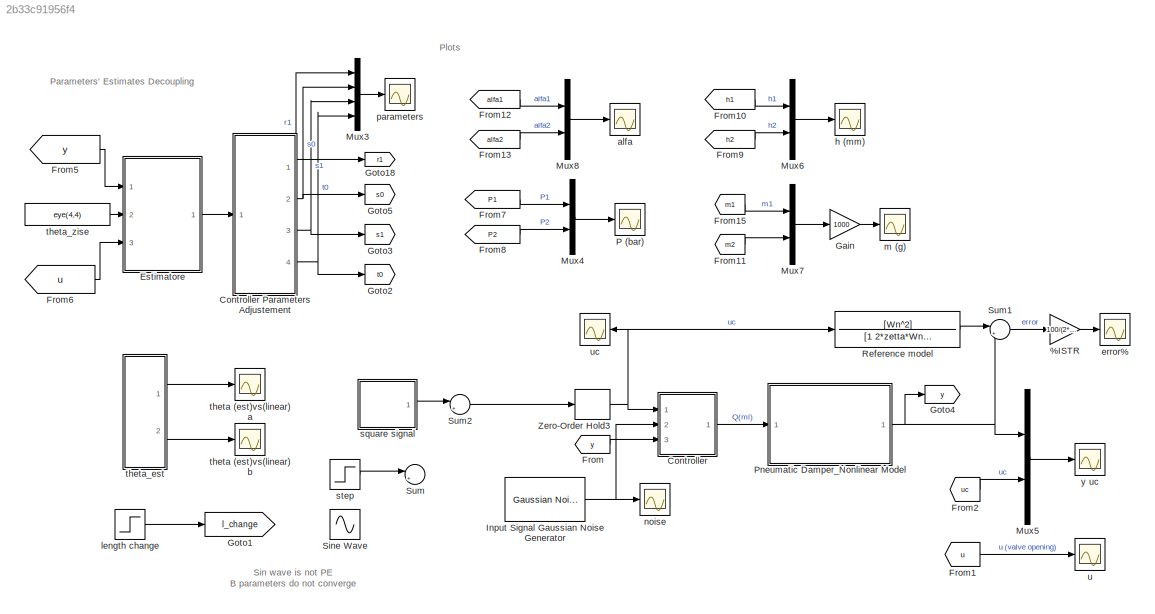
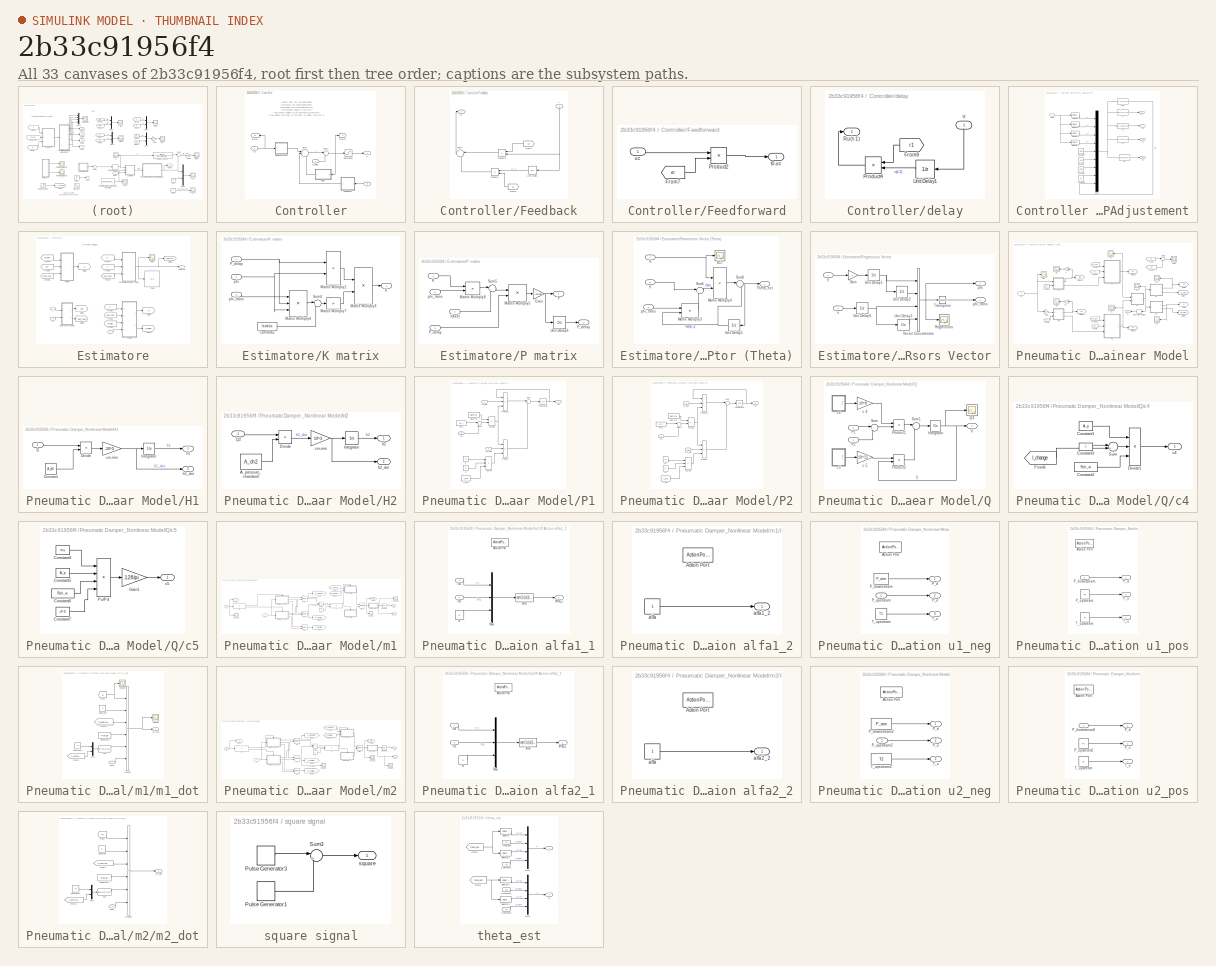
[diagram: thumbnail index - all 33 canvases of the model, root first then tree order]
MODEL slx_2b33c91956f4
KIND model
CONFIG AbsTol = auto
CONFIG EnableMultiTasking = on
CONFIG FixedStep = auto
CONFIG MaxStep = auto
CONFIG MinStep = auto
CONFIG RelTol = 1e-3
CONFIG SampleTimeConstraint = Unconstrained
CONFIG Solver = ode45
CONFIG SolverName = ode45
CONFIG StartTime = 0.0
CONFIG StopTime = 15*Tuc
BLOCK [Gain] %ISTR
  Gain = 100/(2*Q_amp)
  OutDataTypeStr = Inherit: Inherit via internal rule
  ParamDataTypeStr = Inherit: Inherit via internal rule
  SaturateOnIntegerOverflow = off
BLOCK [SubSystem] Controller
  Ports = [3, 1]
  RequestExecContextInheritance = off
BLOCK [SubSystem] Controller Parameters Adjustement
  Ports = [1, 4]
  RequestExecContextInheritance = off
BLOCK [Constant] Controller Parameters Adjustement/Constant
  Value = am1
BLOCK [Constant] Controller Parameters Adjustement/Constant2
  Value = am2
BLOCK [Constant] Controller Parameters Adjustement/Constant3
  Value = a0
BLOCK [Constant] Controller Parameters Adjustement/Constant4
  Value = bm0
BLOCK [Mux] Controller Parameters Adjustement/Mux2
  DisplayOption = bar
  Inputs = 9
  Ports = [9, 1]
BLOCK [Selector] Controller Parameters Adjustement/Selector
  IndexOptions = Index vector (dialog),Index vector (dialog)
  Indices = 1,1
  InputPortWidth = 3
  NumberOfDimensions = 2
  OutputSizes = 1,1
  Ports = [1, 1]
BLOCK [Selector] Controller Parameters Adjustement/Selector1
  IndexOptions = Index vector (dialog),Index vector (dialog)
  Indices = 4,1
  InputPortWidth = 3
  NumberOfDimensions = 2
  OutputSizes = 1,1
  Ports = [1, 1]
BLOCK [Selector] Controller Parameters Adjustement/Selector2
  IndexOptions = Index vector (dialog),Index vector (dialog)
  Indices = 2,1
  InputPortWidth = 3
  NumberOfDimensions = 2
  OutputSizes = 1,1
  Ports = [1, 1]
BLOCK [Selector] Controller Parameters Adjustement/Selector3
  IndexOptions = Index vector (dialog),Index vector (dialog)
  Indices = 3,1
  InputPortWidth = 3
  NumberOfDimensions = 2
  OutputSizes = 1,1
  Ports = [1, 1]
BLOCK [Fcn] Controller Parameters Adjustement/den
  Expr = u(4)^2-u(1)*u(3)*u(4)+u(2)*u(3)^2
BLOCK [Fcn] Controller Parameters Adjustement/r1
  Expr = (u(8)*u(7)*u(3)^2+(u(2)-u(7)-u(8)*u(6))*u(3)*u(4)+(u(8)+u(6)-u(1))*u(4)^2)/u(9)
BLOCK [Outport] Controller Parameters Adjustement/r1 
  IconDisplay = Port number
BLOCK [Fcn] Controller Parameters Adjustement/s0
  Expr = u(4)*(u(8)*u(6)-u(2)-u(6)*u(1)+u(1)^2+u(7)-u(1)*u(8))/u(9)+u(3)*(u(6)*u(2)-u(1)*u(2)-u(8)*u(7)+u(8)*u(2))/u(9)
BLOCK [Outport] Controller Parameters Adjustement/s0 
  IconDisplay = Port number
  Port = 2
BLOCK [Fcn] Controller Parameters Adjustement/s1
  Expr = u(4)*(u(1)*u(2)-u(6)*u(2)+u(8)*u(7)-u(8)*u(2))/u(9)+u(3)*(u(2)*u(7)-u(2)^2-u(8)*u(7)*u(1)+u(8)*u(2)*u(6))/u(9)
BLOCK [Outport] Controller Parameters Adjustement/s1 
  IconDisplay = Port number
  Port = 3
BLOCK [Fcn] Controller Parameters Adjustement/t0
  Expr = (1+u(6)+u(7))/(u(3)+u(4))
BLOCK [Outport] Controller Parameters Adjustement/t0 
  IconDisplay = Port number
  Port = 4
BLOCK [Inport] Controller Parameters Adjustement/theta
  IconDisplay = Port number
BLOCK [SubSystem] Controller/Feedback
  Ports = [1, 1]
  RequestExecContextInheritance = off
BLOCK [From] Controller/Feedback/From1
  GotoTag = s0
  TagVisibility = global
BLOCK [From] Controller/Feedback/From3
  GotoTag = s1
  TagVisibility = global
BLOCK [Product] Controller/Feedback/Product1
  InputSameDT = off
  OutDataTypeStr = Inherit: Inherit via internal rule
  Ports = [2, 1]
  RndMeth = Floor
  SaturateOnIntegerOverflow = off
BLOCK [Product] Controller/Feedback/Product3
  InputSameDT = off
  OutDataTypeStr = Inherit: Inherit via internal rule
  Ports = [2, 1]
  RndMeth = Floor
  SaturateOnIntegerOverflow = off
BLOCK [Outport] Controller/Feedback/S.y
  IconDisplay = Port number
BLOCK [Sum] Controller/Feedback/Sum4
  IconShape = round
  InputSameDT = off
  Inputs = |++
  OutDataTypeStr = Inherit: Inherit via internal rule
  Ports = [2, 1]
  SaturateOnIntegerOverflow = off
BLOCK [UnitDelay] Controller/Feedback/Unit Delay
  InputProcessing = Elements as channels (sample based)
  SampleTime = -1
BLOCK [Inport] Controller/Feedback/y
  IconDisplay = Port number
BLOCK [SubSystem] Controller/Feedforward
  Ports = [1, 1]
  RequestExecContextInheritance = off
BLOCK [From] Controller/Feedforward/From7
  GotoTag = t0
  TagVisibility = global
BLOCK [Product] Controller/Feedforward/Product2
  InputSameDT = off
  OutDataTypeStr = Inherit: Inherit via internal rule
  Ports = [2, 1]
  RndMeth = Floor
  SaturateOnIntegerOverflow = off
BLOCK [Outport] Controller/Feedforward/t0.uc
  IconDisplay = Port number
BLOCK [Inport] Controller/Feedforward/uc
  IconDisplay = Port number
BLOCK [Goto] Controller/Goto1
  GotoTag = uc
  TagVisibility = global
BLOCK [Goto] Controller/Goto4
  GotoTag = u
  TagVisibility = global
BLOCK [Saturate] Controller/Saturation
  InputPortMap = u0
  LowerLimit = -1
  Ports = [1, 1]
  UpperLimit = 1
BLOCK [Sum] Controller/Sum1
  IconShape = round
  InputSameDT = off
  Inputs = |++
  OutDataTypeStr = Inherit: Inherit via internal rule
  Ports = [2, 1]
  SaturateOnIntegerOverflow = off
BLOCK [Sum] Controller/Sum3
  IconShape = round
  InputSameDT = off
  Inputs = |+--
  OutDataTypeStr = Inherit: Inherit via internal rule
  Ports = [3, 1]
  SaturateOnIntegerOverflow = off
BLOCK [Outport] Controller/U
  IconDisplay = Port number
BLOCK [SubSystem] Controller/delay
  Ports = [1, 1]
  RequestExecContextInheritance = off
BLOCK [From] Controller/delay/From9
  GotoTag = r1
  TagVisibility = global
BLOCK [Product] Controller/delay/Product4
  InputSameDT = off
  OutDataTypeStr = Inherit: Inherit via internal rule
  Ports = [2, 1]
  RndMeth = Floor
  SaturateOnIntegerOverflow = off
BLOCK [Outport] Controller/delay/R.u(t-1)
  IconDisplay = Port number
BLOCK [UnitDelay] Controller/delay/Unit Delay1
  InputProcessing = Elements as channels (sample based)
  SampleTime = -1
BLOCK [Inport] Controller/delay/u
  IconDisplay = Port number
BLOCK [Inport] Controller/u_noise
  IconDisplay = Port number
  Port = 2
BLOCK [Inport] Controller/uc
  IconDisplay = Port number
BLOCK [Inport] Controller/y
  IconDisplay = Port number
  Port = 3
BLOCK [SubSystem] Estimatore
  Ports = [3, 1]
  RequestExecContextInheritance = off
BLOCK [From] Estimatore/From1
  GotoTag = y
  TagVisibility = global
BLOCK [From] Estimatore/From10
  GotoTag = P_delay
  TagVisibility = global
BLOCK [From] Estimatore/From14
  GotoTag = K
  TagVisibility = global
BLOCK [From] Estimatore/From15
  GotoTag = phi_trans
  TagVisibility = global
BLOCK [From] Estimatore/From17
  GotoTag = K
  TagVisibility = global
BLOCK [From] Estimatore/From2
  GotoTag = phi_trans
  TagVisibility = global
BLOCK [From] Estimatore/From7
  GotoTag = phi_trans
  TagVisibility = global
BLOCK [From] Estimatore/From8
  GotoTag = P_delay
  TagVisibility = global
BLOCK [From] Estimatore/From9
  GotoTag = phi
  TagVisibility = global
BLOCK [Goto] Estimatore/Goto1
  GotoTag = theta_est
  TagVisibility = global
BLOCK [Goto] Estimatore/Goto18
  GotoTag = P_delay
  TagVisibility = global
BLOCK [Goto] Estimatore/Goto3
  GotoTag = phi
  TagVisibility = global
BLOCK [Goto] Estimatore/Goto5
  GotoTag = phi_trans
  TagVisibility = global
BLOCK [Goto] Estimatore/Goto7
  GotoTag = P
  TagVisibility = global
BLOCK [Goto] Estimatore/Goto9
  GotoTag = K
  TagVisibility = global
BLOCK [Inport] Estimatore/I
  IconDisplay = Port number
  Port = 2
BLOCK [SubSystem] Estimatore/K matrix
  Ports = [3, 1]
  RequestExecContextInheritance = off
BLOCK [Outport] Estimatore/K matrix/K
  IconDisplay = Port number
BLOCK [Constant] Estimatore/K matrix/Lambda2
  Value = lambda
  VectorParams1D = off
BLOCK [Product] Estimatore/K matrix/Matrix Multiply2
  InputSameDT = off
  Multiplication = Matrix(*)
  OutDataTypeStr = Inherit: Inherit via internal rule
  Ports = [2, 1]
  RndMeth = Floor
  SaturateOnIntegerOverflow = off
BLOCK [Product] Estimatore/K matrix/Matrix Multiply6
  InputSameDT = off
  Inputs = ***
  Multiplication = Matrix(*)
  OutDataTypeStr = Inherit: Inherit via internal rule
  Ports = [3, 1]
  RndMeth = Floor
  SaturateOnIntegerOverflow = off
BLOCK [Product] Estimatore/K matrix/Matrix Multiply7
  InputSameDT = off
  Inputs = /
  Multiplication = Matrix(*)
  OutDataTypeStr = Inherit: Inherit via internal rule
  Ports = [1, 1]
  RndMeth = Floor
  SaturateOnIntegerOverflow = off
BLOCK [Product] Estimatore/K matrix/Matrix Multiply9
  InputSameDT = off
  Inputs = **
  Multiplication = Matrix(*)
  OutDataTypeStr = Inherit: Inherit via internal rule
  Ports = [2, 1]
  RndMeth = Floor
  SaturateOnIntegerOverflow = off
BLOCK [Inport] Estimatore/K matrix/P_delay
  IconDisplay = Port number
BLOCK [Sum] Estimatore/K matrix/Sum4
  IconShape = round
  InputSameDT = off
  Inputs = |++
  OutDataTypeStr = Inherit: Inherit via internal rule
  Ports = [2, 1]
  SaturateOnIntegerOverflow = off
BLOCK [Inport] Estimatore/K matrix/phi
  IconDisplay = Port number
  Port = 2
BLOCK [Inport] Estimatore/K matrix/phi_trans
  IconDisplay = Port number
  Port = 3
BLOCK [SubSystem] Estimatore/P matrix
  Ports = [4, 2]
  RequestExecContextInheritance = off
BLOCK [Gain] Estimatore/P matrix/Gain
  Gain = 1/lambda
  OutDataTypeStr = Inherit: Inherit via internal rule
  ParamDataTypeStr = Inherit: Inherit via internal rule
  SaturateOnIntegerOverflow = off
BLOCK [Inport] Estimatore/P matrix/I(4x4)
  IconDisplay = Port number
  Port = 4
BLOCK [Inport] Estimatore/P matrix/K
  IconDisplay = Port number
BLOCK [Product] Estimatore/P matrix/Matrix Multiply5
  InputSameDT = off
  Multiplication = Matrix(*)
  OutDataTypeStr = Inherit: Inherit via internal rule
  Ports = [2, 1]
  RndMeth = Floor
  SaturateOnIntegerOverflow = off
BLOCK [Product] Estimatore/P matrix/Matrix Multiply8
  InputSameDT = off
  Multiplication = Matrix(*)
  OutDataTypeStr = Inherit: Inherit via internal rule
  Ports = [2, 1]
  RndMeth = Floor
  SaturateOnIntegerOverflow = off
BLOCK [Outport] Estimatore/P matrix/P
  IconDisplay = Port number
BLOCK [Inport] Estimatore/P matrix/P_delay
  IconDisplay = Port number
  Port = 3
BLOCK [Outport] Estimatore/P matrix/P_delay 
  IconDisplay = Port number
  Port = 2
BLOCK [Sum] Estimatore/P matrix/Sum5
  IconShape = round
  InputSameDT = off
  Inputs = |-+
  OutDataTypeStr = Inherit: Inherit via internal rule
  Ports = [2, 1]
  SaturateOnIntegerOverflow = off
BLOCK [UnitDelay] Estimatore/P matrix/Unit Delay6
  InitialCondition = P_init
  InputProcessing = Elements as channels (sample based)
  SampleTime = Tsamp
BLOCK [Inport] Estimatore/P matrix/phi_trans
  IconDisplay = Port number
  Port = 2
BLOCK [SubSystem] Estimatore/Parameters Vector (Theta)
  Ports = [3, 1]
  RequestExecContextInheritance = off
BLOCK [Inport] Estimatore/Parameters Vector (Theta)/K
  IconDisplay = Port number
BLOCK [Scope] Estimatore/Parameters Vector (Theta)/K17
  Floating = off
  NumInputPorts = 1
  Ports = [1]
  ScopeSpecificationString = C++SS(StrPVP('Location','[6, 48, 1030, 727]'),StrPVP('Open','off'),MxPVP('AxesTitles',53,'struct(''axes1'',''%<SignalLabel>'')'),MxPVP('ScopeGraphics',56,'struct(''FigureColor'',''[0.5 0.5 0.5]'',''AxesColor'',''[0 0 0]'',''AxesTickColor'',''[1 1 1]'',''LineColors'',''[1 1 0;1 0 1;0 1 1;1 0 0;0 1 0;0 0 1]'',''LineStyles'',''-|-|-|-|-|-'',''LineWidths'',''[0.5 0.5 0.5 0.5 0.5 0.5]'',''MarkerStyles'...<+370ch>
BLOCK [Product] Estimatore/Parameters Vector (Theta)/Matrix Multiply3
  InputSameDT = off
  Multiplication = Matrix(*)
  OutDataTypeStr = Inherit: Inherit via internal rule
  Ports = [2, 1]
  RndMeth = Floor
  SaturateOnIntegerOverflow = off
BLOCK [Product] Estimatore/Parameters Vector (Theta)/Matrix Multiply4
  InputSameDT = off
  Multiplication = Matrix(*)
  OutDataTypeStr = Inherit: Inherit via internal rule
  Ports = [2, 1]
  RndMeth = Floor
  SaturateOnIntegerOverflow = off
BLOCK [Sum] Estimatore/Parameters Vector (Theta)/Sum1
  IconShape = round
  InputSameDT = off
  Inputs = |+-
  OutDataTypeStr = Inherit: Inherit via internal rule
  Ports = [2, 1]
  SaturateOnIntegerOverflow = off
BLOCK [Sum] Estimatore/Parameters Vector (Theta)/Sum3
  IconShape = round
  InputSameDT = off
  Inputs = |++
  OutDataTypeStr = Inherit: Inherit via internal rule
  Ports = [2, 1]
  SaturateOnIntegerOverflow = off
BLOCK [Outport] Estimatore/Parameters Vector (Theta)/Theta_est
  IconDisplay = Port number
BLOCK [UnitDelay] Estimatore/Parameters Vector (Theta)/Unit Delay1
  InitialCondition = theta_init
  InputProcessing = Elements as channels (sample based)
  SampleTime = Tsamp
BLOCK [Inport] Estimatore/Parameters Vector (Theta)/phi_trans
  IconDisplay = Port number
  Port = 3
BLOCK [Inport] Estimatore/Parameters Vector (Theta)/y
  IconDisplay = Port number
  Port = 2
BLOCK [SubSystem] Estimatore/Regressors Vector
  Ports = [2, 2]
  RequestExecContextInheritance = off
BLOCK [Gain] Estimatore/Regressors Vector/Gain
  Gain = -1
  OutDataTypeStr = Inherit: Inherit via internal rule
  ParamDataTypeStr = Inherit: Inherit via internal rule
  SaturateOnIntegerOverflow = off
BLOCK [Scope] Estimatore/Regressors Vector/Regressors
  Floating = off
  NumInputPorts = 1
  Ports = [1]
  ScopeSpecificationString = C++SS(StrPVP('Location','[6, 47, 958, 894]'),StrPVP('Open','off'),MxPVP('AxesTitles',53,'struct(''axes1'',''%<SignalLabel>'')'),MxPVP('ScopeGraphics',56,'struct(''FigureColor'',''[0.5 0.5 0.5]'',''AxesColor'',''[0 0 0]'',''AxesTickColor'',''[1 1 1]'',''LineColors'',''[1 1 0;1 0 1;0 1 1;1 0 0;0 1 0;0 0 1]'',''LineStyles'',''-|-|-|-|-|-'',''LineWidths'',''[0.5 0.5 0.5 0.5 0.5 0.5]'',''MarkerStyles''...<+375ch>
BLOCK [Math] Estimatore/Regressors Vector/Transpose
  Operator = transpose
  Ports = [1, 1]
BLOCK [UnitDelay] Estimatore/Regressors Vector/Unit Delay1
  InputProcessing = Elements as channels (sample based)
  SampleTime = Tsamp
BLOCK [UnitDelay] Estimatore/Regressors Vector/Unit Delay2
  InputProcessing = Elements as channels (sample based)
  SampleTime = Tsamp
BLOCK [UnitDelay] Estimatore/Regressors Vector/Unit Delay3
  InitialCondition = 0.1
  InputProcessing = Elements as channels (sample based)
  SampleTime = Tsamp
BLOCK [UnitDelay] Estimatore/Regressors Vector/Unit Delay6
  InputProcessing = Elements as channels (sample based)
  SampleTime = Tsamp
BLOCK [Concatenate] Estimatore/Regressors Vector/Vector Concatenate
  Mode = Multidimensional array
  NumInputs = 4
  Ports = [4, 1]
BLOCK [Outport] Estimatore/Regressors Vector/phi
  IconDisplay = Port number
BLOCK [Outport] Estimatore/Regressors Vector/phi_trans
  IconDisplay = Port number
  Port = 2
BLOCK [Inport] Estimatore/Regressors Vector/u
  IconDisplay = Port number
  Port = 2
BLOCK [Inport] Estimatore/Regressors Vector/y
  IconDisplay = Port number
BLOCK [Display] Estimatore/Theta
  Decimation = 1
  Ports = [1]
BLOCK [Outport] Estimatore/Theta_est
  IconDisplay = Port number
BLOCK [Scope] Estimatore/theta
  Floating = off
  NumInputPorts = 1
  Ports = [1]
  ScopeSpecificationString = C++SS(StrPVP('Location','[6, 48, 1030, 727]'),StrPVP('Open','off'),MxPVP('AxesTitles',53,'struct(''axes1'',''%<SignalLabel>'')'),MxPVP('ScopeGraphics',56,'struct(''FigureColor'',''[0.5 0.5 0.5]'',''AxesColor'',''[0 0 0]'',''AxesTickColor'',''[1 1 1]'',''LineColors'',''[1 1 0;1 0 1;0 1 1;1 0 0;0 1 0;0 0 1]'',''LineStyles'',''-|-|-|-|-|-'',''LineWidths'',''[0.5 0.5 0.5 0.5 0.5 0.5]'',''MarkerStyles'...<+372ch>
BLOCK [Inport] Estimatore/u
  IconDisplay = Port number
  Port = 3
BLOCK [Inport] Estimatore/y
  IconDisplay = Port number
BLOCK [From] From
  GotoTag = y
  TagVisibility = global
BLOCK [From] From1
  GotoTag = u
  TagVisibility = global
BLOCK [From] From10
  GotoTag = h1
  TagVisibility = global
BLOCK [From] From11
  GotoTag = m2
  TagVisibility = global
BLOCK [From] From12
  GotoTag = alfa1
  TagVisibility = global
BLOCK [From] From13
  GotoTag = alfa2
  TagVisibility = global
BLOCK [From] From15
  GotoTag = m1
  TagVisibility = global
BLOCK [From] From2
  GotoTag = uc
  TagVisibility = global
BLOCK [From] From5
  GotoTag = y
  TagVisibility = global
BLOCK [From] From6
  GotoTag = u
  TagVisibility = global
BLOCK [From] From7
  GotoTag = P1
  TagVisibility = global
BLOCK [From] From8
  GotoTag = P2
  TagVisibility = global
BLOCK [From] From9
  GotoTag = h2
  TagVisibility = global
BLOCK [Gain] Gain
  Gain = 1000
  OutDataTypeStr = Inherit: Inherit via internal rule
  ParamDataTypeStr = Inherit: Inherit via internal rule
  SaturateOnIntegerOverflow = off
BLOCK [Goto] Goto1
  GotoTag = l_change
  TagVisibility = global
BLOCK [Goto] Goto18
  GotoTag = r1
  TagVisibility = global
BLOCK [Goto] Goto2
  GotoTag = t0
  TagVisibility = global
BLOCK [Goto] Goto3
  GotoTag = s1
  TagVisibility = global
BLOCK [Goto] Goto4
  GotoTag = y
  TagVisibility = global
BLOCK [Goto] Goto5
  GotoTag = s0
  TagVisibility = global
BLOCK [Reference] Input Signal Gaussian Noise Generator  REF=commnoisgen2/Gaussian Noise
Generator
  Ports = [0, 1]
  SourceBlock = commnoisgen2/Gaussian Noise\nGenerator
  SourceType = Gaussian Noise Generator
BLOCK [Mux] Mux3
  DisplayOption = bar
  Ports = [4, 1]
BLOCK [Mux] Mux4
  DisplayOption = bar
  Inputs = 2
  Ports = [2, 1]
BLOCK [Mux] Mux5
  DisplayOption = bar
  Inputs = 2
  Ports = [2, 1]
BLOCK [Mux] Mux6
  DisplayOption = bar
  Inputs = 2
  Ports = [2, 1]
BLOCK [Mux] Mux7
  DisplayOption = bar
  Inputs = 2
  Ports = [2, 1]
BLOCK [Mux] Mux8
  DisplayOption = bar
  Inputs = 2
  Ports = [2, 1]
BLOCK [Scope] P (bar)
  Floating = off
  NumInputPorts = 1
  Ports = [1]
  ScopeSpecificationString = C++SS(StrPVP('Location','[6, 211, 432, 537]'),StrPVP('Open','off'),StrPVP('ZoomMode','xonly'),MxPVP('AxesTitles',53,'struct(''axes1'',''%<SignalLabel>'')'),MxPVP('ScopeGraphics',56,'struct(''FigureColor'',''[0.5 0.5 0.5]'',''AxesColor'',''[0 0 0]'',''AxesTickColor'',''[1 1 1]'',''LineColors'',''[1 1 0;1 0 1;0 1 1;1 0 0;0 1 0;0 0 1]'',''LineStyles'',''-|-|-|-|-|-'',''LineWidths'',''[0.5 0.5 0.5 0.5...<+341ch>
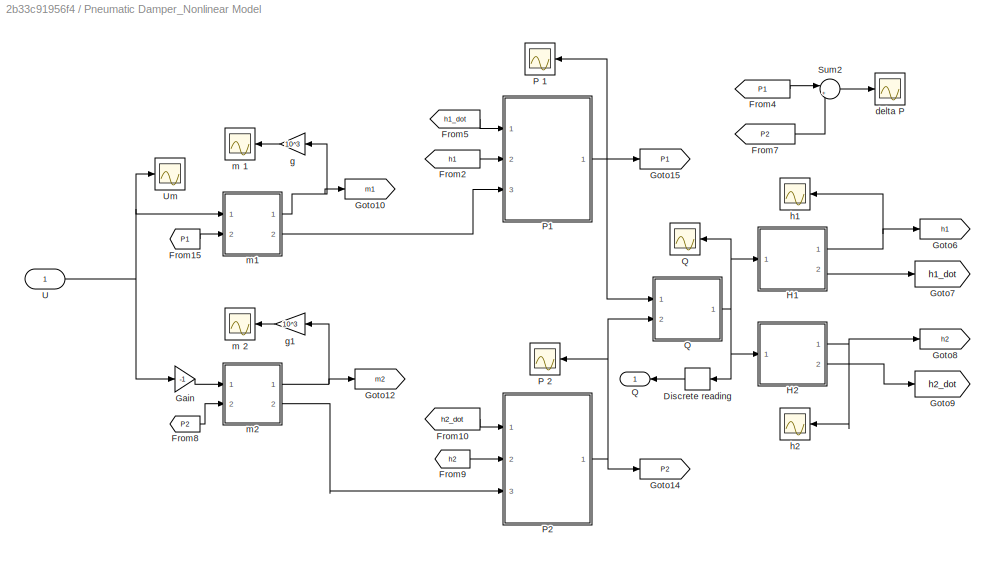
BLOCK [SubSystem] Pneumatic Damper_Nonlinear Model
  Ports = [1, 1]
  RequestExecContextInheritance = off
BLOCK [ZeroOrderHold] Pneumatic Damper_Nonlinear Model/Discrete reading
  SampleTime = Tsamp
BLOCK [From] Pneumatic Damper_Nonlinear Model/From10
  GotoTag = h2_dot
  TagVisibility = global
BLOCK [From] Pneumatic Damper_Nonlinear Model/From15
  GotoTag = P1
  TagVisibility = global
BLOCK [From] Pneumatic Damper_Nonlinear Model/From2
  GotoTag = h1
  TagVisibility = global
BLOCK [From] Pneumatic Damper_Nonlinear Model/From4
  GotoTag = P1
  TagVisibility = global
BLOCK [From] Pneumatic Damper_Nonlinear Model/From5
  GotoTag = h1_dot
  TagVisibility = global
BLOCK [From] Pneumatic Damper_Nonlinear Model/From7
  GotoTag = P2
  TagVisibility = global
BLOCK [From] Pneumatic Damper_Nonlinear Model/From8
  GotoTag = P2
  TagVisibility = global
BLOCK [From] Pneumatic Damper_Nonlinear Model/From9
  GotoTag = h2
  TagVisibility = global
BLOCK [Gain] Pneumatic Damper_Nonlinear Model/Gain
  Gain = -1
  OutDataTypeStr = Inherit: Inherit via internal rule
  ParamDataTypeStr = Inherit: Inherit via internal rule
  SaturateOnIntegerOverflow = off
BLOCK [Goto] Pneumatic Damper_Nonlinear Model/Goto10
  GotoTag = m1
  TagVisibility = global
BLOCK [Goto] Pneumatic Damper_Nonlinear Model/Goto12
  GotoTag = m2
  TagVisibility = global
BLOCK [Goto] Pneumatic Damper_Nonlinear Model/Goto14
  GotoTag = P2
  TagVisibility = global
BLOCK [Goto] Pneumatic Damper_Nonlinear Model/Goto15
  GotoTag = P1
  TagVisibility = global
BLOCK [Goto] Pneumatic Damper_Nonlinear Model/Goto6
  GotoTag = h1
  TagVisibility = global
BLOCK [Goto] Pneumatic Damper_Nonlinear Model/Goto7
  GotoTag = h1_dot
  TagVisibility = global
BLOCK [Goto] Pneumatic Damper_Nonlinear Model/Goto8
  GotoTag = h2
  TagVisibility = global
BLOCK [Goto] Pneumatic Damper_Nonlinear Model/Goto9
  GotoTag = h2_dot
  TagVisibility = global
BLOCK [SubSystem] Pneumatic Damper_Nonlinear Model/H1
  Ports = [1, 2]
  RequestExecContextInheritance = off
BLOCK [Constant] Pneumatic Damper_Nonlinear Model/H1/Constant
  Value = A_ch1
BLOCK [Product] Pneumatic Damper_Nonlinear Model/H1/Divide
  InputSameDT = off
  Inputs = */
  OutDataTypeStr = Inherit: Inherit via internal rule
  Ports = [2, 1]
  RndMeth = Floor
  SaturateOnIntegerOverflow = off
BLOCK [Integrator] Pneumatic Damper_Nonlinear Model/H1/Integrator
  InitialCondition = h1_init
  Ports = [1, 1]
BLOCK [Inport] Pneumatic Damper_Nonlinear Model/H1/Q
  IconDisplay = Port number
BLOCK [Gain] Pneumatic Damper_Nonlinear Model/H1/cm-mm
  Gain = -10^3
  OutDataTypeStr = Inherit: Inherit via internal rule
  ParamDataTypeStr = Inherit: Inherit via internal rule
  SaturateOnIntegerOverflow = off
BLOCK [Outport] Pneumatic Damper_Nonlinear Model/H1/h1
  IconDisplay = Port number
BLOCK [Outport] Pneumatic Damper_Nonlinear Model/H1/h1_dot
  IconDisplay = Port number
  Port = 2
BLOCK [SubSystem] Pneumatic Damper_Nonlinear Model/H2
  Ports = [1, 2]
  RequestExecContextInheritance = off
BLOCK [Constant] Pneumatic Damper_Nonlinear Model/H2/A_pressure_chamber2
  Value = A_ch2
BLOCK [Product] Pneumatic Damper_Nonlinear Model/H2/Divide
  InputSameDT = off
  Inputs = */
  OutDataTypeStr = Inherit: Inherit via internal rule
  Ports = [2, 1]
  RndMeth = Floor
  SaturateOnIntegerOverflow = off
BLOCK [Integrator] Pneumatic Damper_Nonlinear Model/H2/Integrator
  InitialCondition = h2_init
  Ports = [1, 1]
BLOCK [Inport] Pneumatic Damper_Nonlinear Model/H2/Q2
  IconDisplay = Port number
BLOCK [Gain] Pneumatic Damper_Nonlinear Model/H2/cm-mm
  Gain = 10^3
  OutDataTypeStr = Inherit: Inherit via internal rule
  ParamDataTypeStr = Inherit: Inherit via internal rule
  SaturateOnIntegerOverflow = off
BLOCK [Outport] Pneumatic Damper_Nonlinear Model/H2/h2
  IconDisplay = Port number
BLOCK [Outport] Pneumatic Damper_Nonlinear Model/H2/h2_dot
  IconDisplay = Port number
  Port = 2
BLOCK [Scope] Pneumatic Damper_Nonlinear Model/P 1
  Floating = off
  NumInputPorts = 1
  Ports = [1]
  ScopeSpecificationString = C++SS(StrPVP('Location','[398, 357, 722, 595]'),StrPVP('Open','off'),MxPVP('AxesTitles',53,'struct(''axes1'',''%<SignalLabel>'')'),MxPVP('ScopeGraphics',56,'struct(''FigureColor'',''[0.5 0.5 0.5]'',''AxesColor'',''[0 0 0]'',''AxesTickColor'',''[1 1 1]'',''LineColors'',''[1 1 0;1 0 1;0 1 1;1 0 0;0 1 0;0 0 1]'',''LineStyles'',''-|-|-|-|-|-'',''LineWidths'',''[0.5 0.5 0.5 0.5 0.5 0.5]'',''MarkerStyle...<+357ch>
BLOCK [Scope] Pneumatic Damper_Nonlinear Model/P 2
  Floating = off
  NumInputPorts = 1
  Ports = [1]
  ScopeSpecificationString = C++SS(StrPVP('Location','[926, 385, 1250, 624]'),StrPVP('Open','off'),MxPVP('AxesTitles',53,'struct(''axes1'',''%<SignalLabel>'')'),MxPVP('ScopeGraphics',56,'struct(''FigureColor'',''[0.5 0.5 0.5]'',''AxesColor'',''[0 0 0]'',''AxesTickColor'',''[1 1 1]'',''LineColors'',''[1 1 0;1 0 1;0 1 1;1 0 0;0 1 0;0 0 1]'',''LineStyles'',''-|-|-|-|-|-'',''LineWidths'',''[0.5 0.5 0.5 0.5 0.5 0.5]'',''MarkerStyl...<+272ch>
BLOCK [SubSystem] Pneumatic Damper_Nonlinear Model/P1
  Ports = [3, 1]
  RequestExecContextInheritance = off
BLOCK [Constant] Pneumatic Damper_Nonlinear Model/P1/A_ch1
  Value = A_ch1
BLOCK [Constant] Pneumatic Damper_Nonlinear Model/P1/Gamma
  Value = Gamma
BLOCK [Integrator] Pneumatic Damper_Nonlinear Model/P1/Integrator
  InitialCondition = P2_init
  Ports = [1, 1]
BLOCK [Outport] Pneumatic Damper_Nonlinear Model/P1/P1
  IconDisplay = Port number
BLOCK [Product] Pneumatic Damper_Nonlinear Model/P1/Product
  InputSameDT = off
  Inputs = 3
  OutDataTypeStr = Inherit: Inherit via internal rule
  Ports = [3, 1]
  RndMeth = Floor
  SaturateOnIntegerOverflow = off
BLOCK [Product] Pneumatic Damper_Nonlinear Model/P1/Product1
  InputSameDT = off
  Inputs = 3
  OutDataTypeStr = Inherit: Inherit via internal rule
  Ports = [3, 1]
  RndMeth = Floor
  SaturateOnIntegerOverflow = off
BLOCK [Product] Pneumatic Damper_Nonlinear Model/P1/Pu//Pd
  InputSameDT = off
  Inputs = **/
  OutDataTypeStr = Inherit: Inherit via internal rule
  Ports = [3, 1]
  RndMeth = Floor
  SaturateOnIntegerOverflow = off
BLOCK [Product] Pneumatic Damper_Nonlinear Model/P1/Pu//Pd1
  InputSameDT = off
  Inputs = */
  OutDataTypeStr = Inherit: Inherit via internal rule
  Ports = [2, 1]
  RndMeth = Floor
  SaturateOnIntegerOverflow = off
BLOCK [Constant] Pneumatic Damper_Nonlinear Model/P1/R
  Value = R
BLOCK [Sum] Pneumatic Damper_Nonlinear Model/P1/Sum
  IconShape = round
  InputSameDT = off
  Inputs = |++
  OutDataTypeStr = Inherit: Inherit via internal rule
  Ports = [2, 1]
  SaturateOnIntegerOverflow = off
BLOCK [Sum] Pneumatic Damper_Nonlinear Model/P1/Sum1
  IconShape = round
  InputSameDT = off
  Inputs = |+-
  OutDataTypeStr = Inherit: Inherit via internal rule
  Ports = [2, 1]
  SaturateOnIntegerOverflow = off
BLOCK [Constant] Pneumatic Damper_Nonlinear Model/P1/Tf
  Value = Tf
BLOCK [Constant] Pneumatic Damper_Nonlinear Model/P1/h0_1
  Value = h0_1
BLOCK [Inport] Pneumatic Damper_Nonlinear Model/P1/h1
  IconDisplay = Port number
  Port = 2
BLOCK [Inport] Pneumatic Damper_Nonlinear Model/P1/h1_dot
  IconDisplay = Port number
BLOCK [Inport] Pneumatic Damper_Nonlinear Model/P1/m1_dot
  IconDisplay = Port number
  Port = 3
BLOCK [SubSystem] Pneumatic Damper_Nonlinear Model/P2
  Ports = [3, 1]
  RequestExecContextInheritance = off
BLOCK [Constant] Pneumatic Damper_Nonlinear Model/P2/A_ch1
  Value = A_ch2
BLOCK [Constant] Pneumatic Damper_Nonlinear Model/P2/Gamma
  Value = Gamma
BLOCK [Integrator] Pneumatic Damper_Nonlinear Model/P2/Integrator
  InitialCondition = P2_init
  Ports = [1, 1]
BLOCK [Outport] Pneumatic Damper_Nonlinear Model/P2/P2
  IconDisplay = Port number
BLOCK [Product] Pneumatic Damper_Nonlinear Model/P2/Product
  InputSameDT = off
  Inputs = 3
  OutDataTypeStr = Inherit: Inherit via internal rule
  Ports = [3, 1]
  RndMeth = Floor
  SaturateOnIntegerOverflow = off
BLOCK [Product] Pneumatic Damper_Nonlinear Model/P2/Product1
  InputSameDT = off
  Inputs = 3
  OutDataTypeStr = Inherit: Inherit via internal rule
  Ports = [3, 1]
  RndMeth = Floor
  SaturateOnIntegerOverflow = off
BLOCK [Product] Pneumatic Damper_Nonlinear Model/P2/Pu//Pd
  InputSameDT = off
  Inputs = **/
  OutDataTypeStr = Inherit: Inherit via internal rule
  Ports = [3, 1]
  RndMeth = Floor
  SaturateOnIntegerOverflow = off
BLOCK [Product] Pneumatic Damper_Nonlinear Model/P2/Pu//Pd1
  InputSameDT = off
  Inputs = */
  OutDataTypeStr = Inherit: Inherit via internal rule
  Ports = [2, 1]
  RndMeth = Floor
  SaturateOnIntegerOverflow = off
BLOCK [Constant] Pneumatic Damper_Nonlinear Model/P2/R
  Value = R
BLOCK [Sum] Pneumatic Damper_Nonlinear Model/P2/Sum
  IconShape = round
  InputSameDT = off
  Inputs = |++
  OutDataTypeStr = Inherit: Inherit via internal rule
  Ports = [2, 1]
  SaturateOnIntegerOverflow = off
BLOCK [Sum] Pneumatic Damper_Nonlinear Model/P2/Sum1
  IconShape = round
  InputSameDT = off
  Inputs = |+-
  OutDataTypeStr = Inherit: Inherit via internal rule
  Ports = [2, 1]
  SaturateOnIntegerOverflow = off
BLOCK [Constant] Pneumatic Damper_Nonlinear Model/P2/Tf
  Value = Tf
BLOCK [Constant] Pneumatic Damper_Nonlinear Model/P2/h0_1
  Value = h0_2
BLOCK [Inport] Pneumatic Damper_Nonlinear Model/P2/h2
  IconDisplay = Port number
  Port = 2
BLOCK [Inport] Pneumatic Damper_Nonlinear Model/P2/h2_dot
  IconDisplay = Port number
BLOCK [Inport] Pneumatic Damper_Nonlinear Model/P2/m2_dot
  IconDisplay = Port number
  Port = 3
BLOCK [SubSystem] Pneumatic Damper_Nonlinear Model/Q
  Ports = [2, 1]
  RequestExecContextInheritance = off
BLOCK [Scope] Pneumatic Damper_Nonlinear Model/Q 
  Floating = off
  NumInputPorts = 1
  Ports = [1]
  ScopeSpecificationString = C++SS(StrPVP('Location','[130, 497, 556, 729]'),StrPVP('Open','off'),MxPVP('AxesTitles',53,'struct(''axes1'',''%<SignalLabel>'')'),MxPVP('ScopeGraphics',56,'struct(''FigureColor'',''[0.5 0.5 0.5]'',''AxesColor'',''[0 0 0]'',''AxesTickColor'',''[1 1 1]'',''LineColors'',''[1 1 0;1 0 1;0 1 1;1 0 0;0 1 0;0 0 1]'',''LineStyles'',''-|-|-|-|-|-'',''LineWidths'',''[0.5 0.5 0.5 0.5 0.5 0.5]'',''MarkerStyle...<+271ch>
BLOCK [Outport] Pneumatic Damper_Nonlinear Model/Q  
  IconDisplay = Port number
BLOCK [Integrator] Pneumatic Damper_Nonlinear Model/Q/Integrator
  Ports = [1, 1]
BLOCK [Inport] Pneumatic Damper_Nonlinear Model/Q/P1
  IconDisplay = Port number
BLOCK [Inport] Pneumatic Damper_Nonlinear Model/Q/P2
  IconDisplay = Port number
  Port = 2
BLOCK [Product] Pneumatic Damper_Nonlinear Model/Q/Product1
  InputSameDT = off
  OutDataTypeStr = Inherit: Inherit via internal rule
  Ports = [2, 1]
  RndMeth = Floor
  SaturateOnIntegerOverflow = off
BLOCK [Product] Pneumatic Damper_Nonlinear Model/Q/Product2
  InputSameDT = off
  OutDataTypeStr = Inherit: Inherit via internal rule
  Ports = [2, 1]
  RndMeth = Floor
  SaturateOnIntegerOverflow = off
BLOCK [Outport] Pneumatic Damper_Nonlinear Model/Q/Q
  IconDisplay = Port number
BLOCK [Scope] Pneumatic Damper_Nonlinear Model/Q/Q 2
  Floating = off
  NumInputPorts = 1
  Ports = [1]
  ScopeSpecificationString = C++SS(StrPVP('Location','[188, 390, 512, 629]'),StrPVP('Open','off'),MxPVP('AxesTitles',53,'struct(''axes1'',''%<SignalLabel>'')'),MxPVP('ScopeGraphics',56,'struct(''FigureColor'',''[0.5 0.5 0.5]'',''AxesColor'',''[0 0 0]'',''AxesTickColor'',''[1 1 1]'',''LineColors'',''[1 1 0;1 0 1;0 1 1;1 0 0;0 1 0;0 0 1]'',''LineStyles'',''-|-|-|-|-|-'',''LineWidths'',''[0.5 0.5 0.5 0.5 0.5 0.5]'',''MarkerStyle...<+272ch>  <repeated x5 — deduplicated; at blocks: Q 2, Scope2, Scope3>
BLOCK [Sum] Pneumatic Damper_Nonlinear Model/Q/Sum
  IconShape = round
  InputSameDT = off
  Inputs = |+-
  OutDataTypeStr = Inherit: Inherit via internal rule
  Ports = [2, 1]
  SaturateOnIntegerOverflow = off
BLOCK [Sum] Pneumatic Damper_Nonlinear Model/Q/Sum1
  IconShape = round
  InputSameDT = off
  Inputs = |+-
  OutDataTypeStr = Inherit: Inherit via internal rule
  Ports = [2, 1]
  SaturateOnIntegerOverflow = off
BLOCK [Gain] Pneumatic Damper_Nonlinear Model/Q/c 4
  Gain = 10^8
  OutDataTypeStr = Inherit: Inherit via internal rule
  ParamDataTypeStr = Inherit: Inherit via internal rule
  SaturateOnIntegerOverflow = off
BLOCK [Gain] Pneumatic Damper_Nonlinear Model/Q/c 5
  Gain = 10^11
  OutDataTypeStr = Inherit: Inherit via internal rule
  ParamDataTypeStr = Inherit: Inherit via internal rule
  SaturateOnIntegerOverflow = off
BLOCK [SubSystem] Pneumatic Damper_Nonlinear Model/Q/c4
  Ports = [0, 1]
  RequestExecContextInheritance = off
BLOCK [Constant] Pneumatic Damper_Nonlinear Model/Q/c4/Constant1
  Value = A_p
BLOCK [Constant] Pneumatic Damper_Nonlinear Model/Q/c4/Constant2
  Value = Roh_w
BLOCK [Constant] Pneumatic Damper_Nonlinear Model/Q/c4/Constant3
  Value = l
BLOCK [Product] Pneumatic Damper_Nonlinear Model/Q/c4/Divide1
  InputSameDT = off
  Inputs = *//
  OutDataTypeStr = Inherit: Inherit via internal rule
  Ports = [3, 1]
  RndMeth = Floor
  SaturateOnIntegerOverflow = off
BLOCK [From] Pneumatic Damper_Nonlinear Model/Q/c4/From6
  GotoTag = l_change
  TagVisibility = global
BLOCK [Sum] Pneumatic Damper_Nonlinear Model/Q/c4/Sum
  IconShape = round
  InputSameDT = off
  Inputs = |++
  OutDataTypeStr = Inherit: Inherit via internal rule
  Ports = [2, 1]
  SaturateOnIntegerOverflow = off
BLOCK [Outport] Pneumatic Damper_Nonlinear Model/Q/c4/c4
  IconDisplay = Port number
BLOCK [SubSystem] Pneumatic Damper_Nonlinear Model/Q/c5
  Ports = [0, 1]
  RequestExecContextInheritance = off
BLOCK [Constant] Pneumatic Damper_Nonlinear Model/Q/c5/Constant4
  Value = mu
BLOCK [Constant] Pneumatic Damper_Nonlinear Model/Q/c5/Constant5
  Value = A_p
BLOCK [Constant] Pneumatic Damper_Nonlinear Model/Q/c5/Constant6
  Value = Roh_w
BLOCK [Constant] Pneumatic Damper_Nonlinear Model/Q/c5/Constant7
  Value = d^4
BLOCK [Gain] Pneumatic Damper_Nonlinear Model/Q/c5/Gain1
  Gain = 128/pi
  OutDataTypeStr = Inherit: Inherit via internal rule
  ParamDataTypeStr = Inherit: Inherit via internal rule
  SaturateOnIntegerOverflow = off
BLOCK [Product] Pneumatic Damper_Nonlinear Model/Q/c5/Pu//Pd
  InputSameDT = off
  Inputs = **//
  OutDataTypeStr = Inherit: Inherit via internal rule
  Ports = [4, 1]
  RndMeth = Floor
  SaturateOnIntegerOverflow = off
BLOCK [Outport] Pneumatic Damper_Nonlinear Model/Q/c5/c5
  IconDisplay = Port number
BLOCK [Sum] Pneumatic Damper_Nonlinear Model/Sum2
  IconShape = round
  InputSameDT = off
  Inputs = |+-
  OutDataTypeStr = Inherit: Inherit via internal rule
  Ports = [2, 1]
  SaturateOnIntegerOverflow = off
BLOCK [Inport] Pneumatic Damper_Nonlinear Model/U
  IconDisplay = Port number
BLOCK [Scope] Pneumatic Damper_Nonlinear Model/Um
  Floating = off
  NumInputPorts = 1
  Ports = [1]
  ScopeSpecificationString = C++SS(StrPVP('Location','[121, 547, 445, 786]'),StrPVP('Open','off'),MxPVP('AxesTitles',53,'struct(''axes1'',''%<SignalLabel>'')'),MxPVP('ScopeGraphics',56,'struct(''FigureColor'',''[0.5 0.5 0.5]'',''AxesColor'',''[0 0 0]'',''AxesTickColor'',''[1 1 1]'',''LineColors'',''[1 1 0;1 0 1;0 1 1;1 0 0;0 1 0;0 0 1]'',''LineStyles'',''-|-|-|-|-|-'',''LineWidths'',''[0.5 0.5 0.5 0.5 0.5 0.5]'',''MarkerStyle...<+239ch>
BLOCK [Scope] Pneumatic Damper_Nonlinear Model/delta P
  Floating = off
  NumInputPorts = 1
  Ports = [1]
  ScopeSpecificationString = C++SS(StrPVP('Location','[6, 211, 432, 537]'),StrPVP('Open','off'),MxPVP('AxesTitles',53,'struct(''axes1'',''%<SignalLabel>'')'),MxPVP('ScopeGraphics',56,'struct(''FigureColor'',''[0.5 0.5 0.5]'',''AxesColor'',''[0 0 0]'',''AxesTickColor'',''[1 1 1]'',''LineColors'',''[1 1 0;1 0 1;0 1 1;1 0 0;0 1 0;0 0 1]'',''LineStyles'',''-|-|-|-|-|-'',''LineWidths'',''[0.5 0.5 0.5 0.5 0.5 0.5]'',''MarkerStyles'...<+270ch>
BLOCK [Gain] Pneumatic Damper_Nonlinear Model/g
  Gain = 10^3
  OutDataTypeStr = Inherit: Inherit via internal rule
  ParamDataTypeStr = Inherit: Inherit via internal rule
  SaturateOnIntegerOverflow = off
BLOCK [Gain] Pneumatic Damper_Nonlinear Model/g1
  Gain = 10^3
  OutDataTypeStr = Inherit: Inherit via internal rule
  ParamDataTypeStr = Inherit: Inherit via internal rule
  SaturateOnIntegerOverflow = off
BLOCK [Scope] Pneumatic Damper_Nonlinear Model/h1
  Floating = off
  NumInputPorts = 1
  Ports = [1]
  ScopeSpecificationString = C++SS(StrPVP('Location','[6, 477, 435, 716]'),StrPVP('Open','off'),MxPVP('AxesTitles',53,'struct(''axes1'',''%<SignalLabel>'')'),MxPVP('ScopeGraphics',56,'struct(''FigureColor'',''[0.5 0.5 0.5]'',''AxesColor'',''[0 0 0]'',''AxesTickColor'',''[1 1 1]'',''LineColors'',''[1 1 0;1 0 1;0 1 1;1 0 0;0 1 0;0 0 1]'',''LineStyles'',''-|-|-|-|-|-'',''LineWidths'',''[0.5 0.5 0.5 0.5 0.5 0.5]'',''MarkerStyles'...<+269ch>
BLOCK [Scope] Pneumatic Damper_Nonlinear Model/h2
  Floating = off
  NumInputPorts = 1
  Ports = [1]
  ScopeSpecificationString = C++SS(StrPVP('Location','[188, 390, 512, 629]'),StrPVP('Open','off'),MxPVP('AxesTitles',53,'struct(''axes1'',''%<SignalLabel>'')'),MxPVP('ScopeGraphics',56,'struct(''FigureColor'',''[0.5 0.5 0.5]'',''AxesColor'',''[0 0 0]'',''AxesTickColor'',''[1 1 1]'',''LineColors'',''[1 1 0;1 0 1;0 1 1;1 0 0;0 1 0;0 0 1]'',''LineStyles'',''-|-|-|-|-|-'',''LineWidths'',''[0.5 0.5 0.5 0.5 0.5 0.5]'',''MarkerStyle...<+271ch>  <repeated x3 — deduplicated; at blocks: h2, Scope1>
BLOCK [Scope] Pneumatic Damper_Nonlinear Model/m 1
  Floating = off
  NumInputPorts = 1
  Ports = [1]
  ScopeSpecificationString = C++SS(StrPVP('Location','[68, 390, 392, 629]'),StrPVP('Open','off'),MxPVP('AxesTitles',53,'struct(''axes1'',''%<SignalLabel>'')'),MxPVP('ScopeGraphics',56,'struct(''FigureColor'',''[0.5 0.5 0.5]'',''AxesColor'',''[0 0 0]'',''AxesTickColor'',''[1 1 1]'',''LineColors'',''[1 1 0;1 0 1;0 1 1;1 0 0;0 1 0;0 0 1]'',''LineStyles'',''-|-|-|-|-|-'',''LineWidths'',''[0.5 0.5 0.5 0.5 0.5 0.5]'',''MarkerStyles...<+270ch>
BLOCK [Scope] Pneumatic Damper_Nonlinear Model/m 2
  Floating = off
  NumInputPorts = 1
  Ports = [1]
  ScopeSpecificationString = C++SS(StrPVP('Location','[46, 400, 370, 639]'),StrPVP('Open','off'),MxPVP('AxesTitles',53,'struct(''axes1'',''%<SignalLabel>'')'),MxPVP('ScopeGraphics',56,'struct(''FigureColor'',''[0.5 0.5 0.5]'',''AxesColor'',''[0 0 0]'',''AxesTickColor'',''[1 1 1]'',''LineColors'',''[1 1 0;1 0 1;0 1 1;1 0 0;0 1 0;0 0 1]'',''LineStyles'',''-|-|-|-|-|-'',''LineWidths'',''[0.5 0.5 0.5 0.5 0.5 0.5]'',''MarkerStyles...<+270ch>
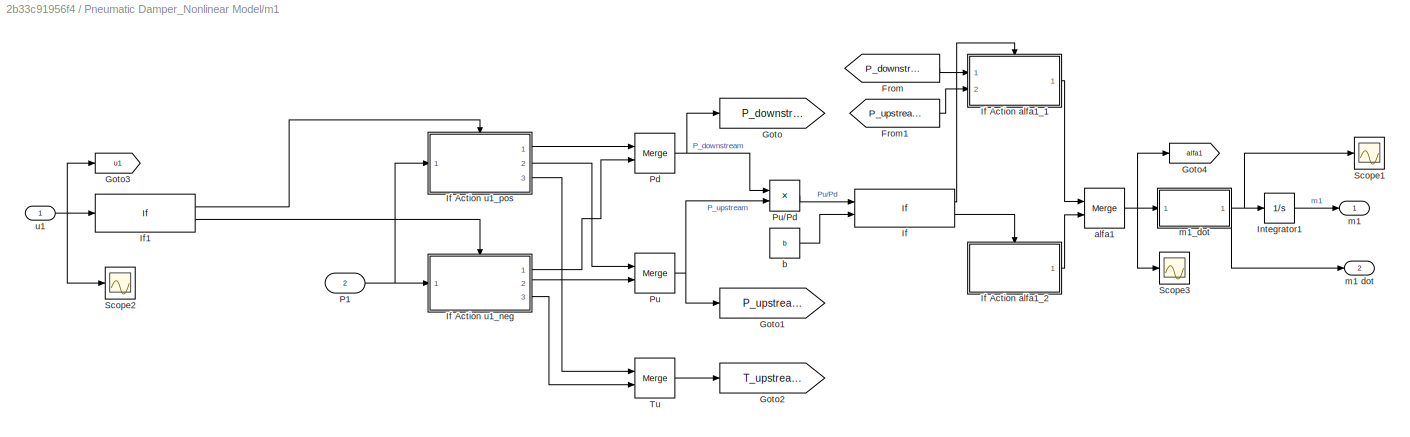
BLOCK [SubSystem] Pneumatic Damper_Nonlinear Model/m1
  Ports = [2, 2]
  RequestExecContextInheritance = off
BLOCK [From] Pneumatic Damper_Nonlinear Model/m1/From
  GotoTag = P_downstream_1
  TagVisibility = global
BLOCK [From] Pneumatic Damper_Nonlinear Model/m1/From1
  GotoTag = P_upstream_1
  TagVisibility = global
BLOCK [Goto] Pneumatic Damper_Nonlinear Model/m1/Goto
  GotoTag = P_downstream_1
  TagVisibility = global
BLOCK [Goto] Pneumatic Damper_Nonlinear Model/m1/Goto1
  GotoTag = P_upstream_1
  TagVisibility = global
BLOCK [Goto] Pneumatic Damper_Nonlinear Model/m1/Goto2
  GotoTag = T_upstream_1
  TagVisibility = global
BLOCK [Goto] Pneumatic Damper_Nonlinear Model/m1/Goto3
  GotoTag = u1
  TagVisibility = global
BLOCK [Goto] Pneumatic Damper_Nonlinear Model/m1/Goto4
  GotoTag = alfa1
  TagVisibility = global
BLOCK [If] Pneumatic Damper_Nonlinear Model/m1/If
  IfExpression = u1 > u2
  NumInputs = 2
  Ports = [2, 2]
BLOCK [SubSystem] Pneumatic Damper_Nonlinear Model/m1/If Action alfa1_1
  Ports = [2, 1, 0, 0, 0, 0, 0, 1]
  RequestExecContextInheritance = off
  TreatAsAtomicUnit = on
BLOCK [ActionPort] Pneumatic Damper_Nonlinear Model/m1/If Action alfa1_1/Action Port
BLOCK [Inport] Pneumatic Damper_Nonlinear Model/m1/If Action alfa1_1/In1
  IconDisplay = Port number
BLOCK [Inport] Pneumatic Damper_Nonlinear Model/m1/If Action alfa1_1/In2
  IconDisplay = Port number
  Port = 2
BLOCK [Mux] Pneumatic Damper_Nonlinear Model/m1/If Action alfa1_1/Mux
  DisplayOption = bar
  Inputs = 3
  Ports = [3, 1]
BLOCK [Fcn] Pneumatic Damper_Nonlinear Model/m1/If Action alfa1_1/alfa
  Expr = sqrt(1-((u(1)/u(2)-u(3))/(1-u(3)))^2)
BLOCK [Outport] Pneumatic Damper_Nonlinear Model/m1/If Action alfa1_1/alfa1_1
  IconDisplay = Port number
BLOCK [Constant] Pneumatic Damper_Nonlinear Model/m1/If Action alfa1_1/b
  Value = b
BLOCK [SubSystem] Pneumatic Damper_Nonlinear Model/m1/If Action alfa1_2
  Ports = [0, 1, 0, 0, 0, 0, 0, 1]
  RequestExecContextInheritance = off
  TreatAsAtomicUnit = on
BLOCK [ActionPort] Pneumatic Damper_Nonlinear Model/m1/If Action alfa1_2/Action Port
BLOCK [Constant] Pneumatic Damper_Nonlinear Model/m1/If Action alfa1_2/alfa
BLOCK [Outport] Pneumatic Damper_Nonlinear Model/m1/If Action alfa1_2/alfa1_2
  IconDisplay = Port number
BLOCK [SubSystem] Pneumatic Damper_Nonlinear Model/m1/If Action u1_neg
  Ports = [1, 3, 0, 0, 0, 0, 0, 1]
  RequestExecContextInheritance = off
  TreatAsAtomicUnit = on
BLOCK [ActionPort] Pneumatic Damper_Nonlinear Model/m1/If Action u1_neg/Action Port
BLOCK [Outport] Pneumatic Damper_Nonlinear Model/m1/If Action u1_neg/P_d
  IconDisplay = Port number
BLOCK [Constant] Pneumatic Damper_Nonlinear Model/m1/If Action u1_neg/P_downstream
  Value = P_atm
BLOCK [Outport] Pneumatic Damper_Nonlinear Model/m1/If Action u1_neg/P_u
  IconDisplay = Port number
  Port = 2
BLOCK [Inport] Pneumatic Damper_Nonlinear Model/m1/If Action u1_neg/P_upstream
  IconDisplay = Port number
BLOCK [Outport] Pneumatic Damper_Nonlinear Model/m1/If Action u1_neg/T_u
  IconDisplay = Port number
  Port = 3
BLOCK [Constant] Pneumatic Damper_Nonlinear Model/m1/If Action u1_neg/T_upstream
  Value = T1
BLOCK [SubSystem] Pneumatic Damper_Nonlinear Model/m1/If Action u1_pos
  Ports = [1, 3, 0, 0, 0, 0, 0, 1]
  RequestExecContextInheritance = off
  TreatAsAtomicUnit = on
BLOCK [ActionPort] Pneumatic Damper_Nonlinear Model/m1/If Action u1_pos/Action Port
BLOCK [Outport] Pneumatic Damper_Nonlinear Model/m1/If Action u1_pos/P_d
  IconDisplay = Port number
BLOCK [Inport] Pneumatic Damper_Nonlinear Model/m1/If Action u1_pos/P_downstream
  IconDisplay = Port number
BLOCK [Outport] Pneumatic Damper_Nonlinear Model/m1/If Action u1_pos/P_u
  IconDisplay = Port number
  Port = 2
BLOCK [Constant] Pneumatic Damper_Nonlinear Model/m1/If Action u1_pos/P_upstream
  Value = Ps
BLOCK [Outport] Pneumatic Damper_Nonlinear Model/m1/If Action u1_pos/T_u
  IconDisplay = Port number
  Port = 3
BLOCK [Constant] Pneumatic Damper_Nonlinear Model/m1/If Action u1_pos/T_upstream
  Value = Ts
BLOCK [If] Pneumatic Damper_Nonlinear Model/m1/If1
  Ports = [1, 2]
BLOCK [Integrator] Pneumatic Damper_Nonlinear Model/m1/Integrator1
  Ports = [1, 1]
BLOCK [Inport] Pneumatic Damper_Nonlinear Model/m1/P1
  IconDisplay = Port number
  Port = 2
BLOCK [Merge] Pneumatic Damper_Nonlinear Model/m1/Pd
  Ports = [2, 1]
BLOCK [Merge] Pneumatic Damper_Nonlinear Model/m1/Pu
  Ports = [2, 1]
BLOCK [Product] Pneumatic Damper_Nonlinear Model/m1/Pu//Pd
  InputSameDT = off
  Inputs = */
  OutDataTypeStr = Inherit: Inherit via internal rule
  Ports = [2, 1]
  RndMeth = Floor
  SaturateOnIntegerOverflow = off
BLOCK [Scope] Pneumatic Damper_Nonlinear Model/m1/Scope1
  Floating = off
  NumInputPorts = 1
  Ports = [1]
BLOCK [Scope] Pneumatic Damper_Nonlinear Model/m1/Scope2
  Floating = off
  NumInputPorts = 1
  Ports = [1]
BLOCK [Scope] Pneumatic Damper_Nonlinear Model/m1/Scope3
  Floating = off
  NumInputPorts = 1
  Ports = [1]
BLOCK [Merge] Pneumatic Damper_Nonlinear Model/m1/Tu
  Ports = [2, 1]
BLOCK [Merge] Pneumatic Damper_Nonlinear Model/m1/alfa1
  Ports = [2, 1]
BLOCK [Constant] Pneumatic Damper_Nonlinear Model/m1/b
  Value = b
BLOCK [Outport] Pneumatic Damper_Nonlinear Model/m1/m1
  IconDisplay = Port number
BLOCK [Outport] Pneumatic Damper_Nonlinear Model/m1/m1 dot
  IconDisplay = Port number
  Port = 2
BLOCK [SubSystem] Pneumatic Damper_Nonlinear Model/m1/m1_dot
  Ports = [1, 1]
  RequestExecContextInheritance = off
BLOCK [Constant] Pneumatic Damper_Nonlinear Model/m1/m1_dot/Constant
  Value = C
BLOCK [Constant] Pneumatic Damper_Nonlinear Model/m1/m1_dot/Constant2
  Value = Roh_air
BLOCK [Constant] Pneumatic Damper_Nonlinear Model/m1/m1_dot/Constant3
  Value = T0
BLOCK [Fcn] Pneumatic Damper_Nonlinear Model/m1/m1_dot/Fcn
  Expr = sqrt(u(1)/u(2))
BLOCK [From] Pneumatic Damper_Nonlinear Model/m1/m1_dot/From
  GotoTag = u1
  TagVisibility = global
BLOCK [From] Pneumatic Damper_Nonlinear Model/m1/m1_dot/From1
  GotoTag = P_upstream_1
  TagVisibility = global
BLOCK [From] Pneumatic Damper_Nonlinear Model/m1/m1_dot/From3
  GotoTag = T_upstream_1
  TagVisibility = global
BLOCK [Mux] Pneumatic Damper_Nonlinear Model/m1/m1_dot/Mux
  DisplayOption = bar
  Inputs = 2
  Ports = [2, 1]
BLOCK [Product] Pneumatic Damper_Nonlinear Model/m1/m1_dot/Product
  InputSameDT = off
  Inputs = 6
  OutDataTypeStr = Inherit: Inherit via internal rule
  Ports = [6, 1]
  RndMeth = Floor
  SaturateOnIntegerOverflow = off
BLOCK [Scope] Pneumatic Damper_Nonlinear Model/m1/m1_dot/Scope1
  Floating = off
  NumInputPorts = 1
  Ports = [1]
BLOCK [Scope] Pneumatic Damper_Nonlinear Model/m1/m1_dot/Scope2
  Floating = off
  NumInputPorts = 1
  Ports = [1]
BLOCK [Inport] Pneumatic Damper_Nonlinear Model/m1/m1_dot/alfa1
  IconDisplay = Port number
BLOCK [Outport] Pneumatic Damper_Nonlinear Model/m1/m1_dot/m1_dot
  IconDisplay = Port number
BLOCK [Inport] Pneumatic Damper_Nonlinear Model/m1/u1
  IconDisplay = Port number
BLOCK [SubSystem] Pneumatic Damper_Nonlinear Model/m2
  Ports = [2, 2]
  RequestExecContextInheritance = off
BLOCK [From] Pneumatic Damper_Nonlinear Model/m2/From
  GotoTag = P_downstream_2
  TagVisibility = global
BLOCK [From] Pneumatic Damper_Nonlinear Model/m2/From1
  GotoTag = P_upstream_2
  TagVisibility = global
BLOCK [Goto] Pneumatic Damper_Nonlinear Model/m2/Goto
  GotoTag = P_downstream_2
  TagVisibility = global
BLOCK [Goto] Pneumatic Damper_Nonlinear Model/m2/Goto1
  GotoTag = P_upstream_2
  TagVisibility = global
BLOCK [Goto] Pneumatic Damper_Nonlinear Model/m2/Goto2
  GotoTag = T_upstream_2
  TagVisibility = global
BLOCK [Goto] Pneumatic Damper_Nonlinear Model/m2/Goto3
  GotoTag = u2
  TagVisibility = global
BLOCK [Goto] Pneumatic Damper_Nonlinear Model/m2/Goto4
  GotoTag = alfa2
  TagVisibility = global
BLOCK [If] Pneumatic Damper_Nonlinear Model/m2/If
  IfExpression = u1 > u2
  NumInputs = 2
  Ports = [2, 2]
BLOCK [SubSystem] Pneumatic Damper_Nonlinear Model/m2/If Action alfa2_1
  Ports = [2, 1, 0, 0, 0, 0, 0, 1]
  RequestExecContextInheritance = off
  TreatAsAtomicUnit = on
BLOCK [ActionPort] Pneumatic Damper_Nonlinear Model/m2/If Action alfa2_1/Action Port
BLOCK [Mux] Pneumatic Damper_Nonlinear Model/m2/If Action alfa2_1/Mux
  DisplayOption = bar
  Inputs = 3
  Ports = [3, 1]
BLOCK [Fcn] Pneumatic Damper_Nonlinear Model/m2/If Action alfa2_1/alfa
  Expr = sqrt(1-((u(1)/u(2)-u(3))/(1-u(3)))^2)
BLOCK [Outport] Pneumatic Damper_Nonlinear Model/m2/If Action alfa2_1/alfa2_1
  IconDisplay = Port number
BLOCK [Constant] Pneumatic Damper_Nonlinear Model/m2/If Action alfa2_1/b
  Value = b
BLOCK [Inport] Pneumatic Damper_Nonlinear Model/m2/If Action alfa2_1/in1
  IconDisplay = Port number
  Port = 2
BLOCK [Inport] Pneumatic Damper_Nonlinear Model/m2/If Action alfa2_1/in3
  IconDisplay = Port number
BLOCK [SubSystem] Pneumatic Damper_Nonlinear Model/m2/If Action alfa2_2
  Ports = [0, 1, 0, 0, 0, 0, 0, 1]
  RequestExecContextInheritance = off
  TreatAsAtomicUnit = on
BLOCK [ActionPort] Pneumatic Damper_Nonlinear Model/m2/If Action alfa2_2/Action Port
BLOCK [Constant] Pneumatic Damper_Nonlinear Model/m2/If Action alfa2_2/alfa
BLOCK [Outport] Pneumatic Damper_Nonlinear Model/m2/If Action alfa2_2/alfa2_2
  IconDisplay = Port number
BLOCK [SubSystem] Pneumatic Damper_Nonlinear Model/m2/If Action u2_neg
  Ports = [1, 3, 0, 0, 0, 0, 0, 1]
  RequestExecContextInheritance = off
  TreatAsAtomicUnit = on
BLOCK [ActionPort] Pneumatic Damper_Nonlinear Model/m2/If Action u2_neg/Action Port
BLOCK [Outport] Pneumatic Damper_Nonlinear Model/m2/If Action u2_neg/P_d
  IconDisplay = Port number
BLOCK [Constant] Pneumatic Damper_Nonlinear Model/m2/If Action u2_neg/P_downstream2
  Value = P_atm
BLOCK [Outport] Pneumatic Damper_Nonlinear Model/m2/If Action u2_neg/P_u
  IconDisplay = Port number
  Port = 2
BLOCK [Inport] Pneumatic Damper_Nonlinear Model/m2/If Action u2_neg/P_upstream2
  IconDisplay = Port number
BLOCK [Outport] Pneumatic Damper_Nonlinear Model/m2/If Action u2_neg/T_u
  IconDisplay = Port number
  Port = 3
BLOCK [Constant] Pneumatic Damper_Nonlinear Model/m2/If Action u2_neg/T_upstream2
  Value = T2
BLOCK [SubSystem] Pneumatic Damper_Nonlinear Model/m2/If Action u2_pos
  Ports = [1, 3, 0, 0, 0, 0, 0, 1]
  RequestExecContextInheritance = off
  TreatAsAtomicUnit = on
BLOCK [ActionPort] Pneumatic Damper_Nonlinear Model/m2/If Action u2_pos/Action Port
BLOCK [Outport] Pneumatic Damper_Nonlinear Model/m2/If Action u2_pos/P_d
  IconDisplay = Port number
BLOCK [Inport] Pneumatic Damper_Nonlinear Model/m2/If Action u2_pos/P_downstream2
  IconDisplay = Port number
BLOCK [Outport] Pneumatic Damper_Nonlinear Model/m2/If Action u2_pos/P_u
  IconDisplay = Port number
  Port = 2
BLOCK [Constant] Pneumatic Damper_Nonlinear Model/m2/If Action u2_pos/P_upstream2
  Value = Ps
BLOCK [Outport] Pneumatic Damper_Nonlinear Model/m2/If Action u2_pos/T_u
  IconDisplay = Port number
  Port = 3
BLOCK [Constant] Pneumatic Damper_Nonlinear Model/m2/If Action u2_pos/T_upstream
  Value = Ts
BLOCK [If] Pneumatic Damper_Nonlinear Model/m2/If1
  Ports = [1, 2]
BLOCK [Integrator] Pneumatic Damper_Nonlinear Model/m2/Integrator1
  Ports = [1, 1]
BLOCK [Inport] Pneumatic Damper_Nonlinear Model/m2/P2
  IconDisplay = Port number
  Port = 2
BLOCK [Merge] Pneumatic Damper_Nonlinear Model/m2/Pd
  Ports = [2, 1]
BLOCK [Merge] Pneumatic Damper_Nonlinear Model/m2/Pu
  Ports = [2, 1]
BLOCK [Product] Pneumatic Damper_Nonlinear Model/m2/Pu//Pd
  InputSameDT = off
  Inputs = */
  OutDataTypeStr = Inherit: Inherit via internal rule
  Ports = [2, 1]
  RndMeth = Floor
  SaturateOnIntegerOverflow = off
BLOCK [Scope] Pneumatic Damper_Nonlinear Model/m2/Scope1
  Floating = off
  NumInputPorts = 1
  Ports = [1]
  ScopeSpecificationString = C++SS(StrPVP('Location','[782, 612, 1106, 851]'),StrPVP('Open','off'),MxPVP('AxesTitles',53,'struct(''axes1'',''%<SignalLabel>'')'),MxPVP('ScopeGraphics',56,'struct(''FigureColor'',''[0.5 0.5 0.5]'',''AxesColor'',''[0 0 0]'',''AxesTickColor'',''[1 1 1]'',''LineColors'',''[1 1 0;1 0 1;0 1 1;1 0 0;0 1 0;0 0 1]'',''LineStyles'',''-|-|-|-|-|-'',''LineWidths'',''[0.5 0.5 0.5 0.5 0.5 0.5]'',''MarkerStyl...<+273ch>
BLOCK [Scope] Pneumatic Damper_Nonlinear Model/m2/Scope2
  Floating = off
  NumInputPorts = 1
  Ports = [1]
  ScopeSpecificationString = C++SS(StrPVP('Location','[188, 390, 512, 629]'),StrPVP('Open','off'),MxPVP('AxesTitles',53,'struct(''axes1'',''%<SignalLabel>'')'),MxPVP('ScopeGraphics',56,'struct(''FigureColor'',''[0.5 0.5 0.5]'',''AxesColor'',''[0 0 0]'',''AxesTickColor'',''[1 1 1]'',''LineColors'',''[1 1 0;1 0 1;0 1 1;1 0 0;0 1 0;0 0 1]'',''LineStyles'',''-|-|-|-|-|-'',''LineWidths'',''[0.5 0.5 0.5 0.5 0.5 0.5]'',''MarkerStyle...<+297ch>
BLOCK [Scope] Pneumatic Damper_Nonlinear Model/m2/Scope3
  Floating = off
  NumInputPorts = 1
  Ports = [1]
BLOCK [Merge] Pneumatic Damper_Nonlinear Model/m2/Tu
  Ports = [2, 1]
BLOCK [Merge] Pneumatic Damper_Nonlinear Model/m2/alfa2
  Ports = [2, 1]
BLOCK [Constant] Pneumatic Damper_Nonlinear Model/m2/b
  Value = b
BLOCK [Outport] Pneumatic Damper_Nonlinear Model/m2/m2
  IconDisplay = Port number
BLOCK [Outport] Pneumatic Damper_Nonlinear Model/m2/m2 dot
  IconDisplay = Port number
  Port = 2
BLOCK [SubSystem] Pneumatic Damper_Nonlinear Model/m2/m2_dot
  Ports = [1, 1]
  RequestExecContextInheritance = off
BLOCK [Constant] Pneumatic Damper_Nonlinear Model/m2/m2_dot/Constant
  Value = C
BLOCK [Constant] Pneumatic Damper_Nonlinear Model/m2/m2_dot/Constant2
  Value = Roh_air
BLOCK [Constant] Pneumatic Damper_Nonlinear Model/m2/m2_dot/Constant3
  Value = T0
BLOCK [Fcn] Pneumatic Damper_Nonlinear Model/m2/m2_dot/Fcn
  Expr = sqrt(u(1)/u(2))
BLOCK [From] Pneumatic Damper_Nonlinear Model/m2/m2_dot/From
  GotoTag = u2
  TagVisibility = global
BLOCK [From] Pneumatic Damper_Nonlinear Model/m2/m2_dot/From1
  GotoTag = P_upstream_2
  TagVisibility = global
BLOCK [From] Pneumatic Damper_Nonlinear Model/m2/m2_dot/From3
  GotoTag = T_upstream_2
  TagVisibility = global
BLOCK [Mux] Pneumatic Damper_Nonlinear Model/m2/m2_dot/Mux
  DisplayOption = bar
  Inputs = 2
  Ports = [2, 1]
BLOCK [Product] Pneumatic Damper_Nonlinear Model/m2/m2_dot/Product
  InputSameDT = off
  Inputs = 6
  OutDataTypeStr = Inherit: Inherit via internal rule
  Ports = [6, 1]
  RndMeth = Floor
  SaturateOnIntegerOverflow = off
BLOCK [Inport] Pneumatic Damper_Nonlinear Model/m2/m2_dot/alfa2
  IconDisplay = Port number
BLOCK [Outport] Pneumatic Damper_Nonlinear Model/m2/m2_dot/m2_dot
  IconDisplay = Port number
BLOCK [Inport] Pneumatic Damper_Nonlinear Model/m2/u2
  IconDisplay = Port number
BLOCK [TransferFcn] Reference model
  Denominator = [1 2*zetta*Wn Wn^2]
  Numerator = [Wn^2]
BLOCK [Sin] Sine Wave
  Amplitude = 10
  Frequency = Tuc
  Ports = [0, 1]
  SampleTime = 0
BLOCK [Sum] Sum
  IconShape = round
  InputSameDT = off
  Inputs = |++
  OutDataTypeStr = Inherit: Inherit via internal rule
  Ports = [2, 1]
  SaturateOnIntegerOverflow = off
BLOCK [Sum] Sum1
  IconShape = round
  InputSameDT = off
  Inputs = |+-
  OutDataTypeStr = Inherit: Inherit via internal rule
  Ports = [2, 1]
  SaturateOnIntegerOverflow = off
BLOCK [Sum] Sum2
  IconShape = round
  InputSameDT = off
  Inputs = |++
  OutDataTypeStr = Inherit: Inherit via internal rule
  Ports = [2, 1]
  SaturateOnIntegerOverflow = off
BLOCK [ZeroOrderHold] Zero-Order Hold3
  SampleTime = Tsamp
BLOCK [Scope] alfa
  Floating = off
  NumInputPorts = 1
  Ports = [1]
  ScopeSpecificationString = C++SS(StrPVP('Location','[6, 211, 432, 537]'),StrPVP('Open','off'),StrPVP('ZoomMode','xonly'),MxPVP('AxesTitles',53,'struct(''axes1'',''%<SignalLabel>'')'),MxPVP('ScopeGraphics',56,'struct(''FigureColor'',''[0.5 0.5 0.5]'',''AxesColor'',''[0 0 0]'',''AxesTickColor'',''[1 1 1]'',''LineColors'',''[1 1 0;1 0 1;0 1 1;1 0 0;0 1 0;0 0 1]'',''LineStyles'',''-|-|-|-|-|-'',''LineWidths'',''[0.5 0.5 0.5 0.5...<+341ch>
BLOCK [Scope] error%
  Floating = off
  NumInputPorts = 1
  Ports = [1]
  ScopeSpecificationString = C++SS(StrPVP('Location','[809, 205, 1169, 564]'),StrPVP('Open','off'),StrPVP('ZoomMode','xonly'),MxPVP('AxesTitles',53,'struct(''axes1'',''%<SignalLabel>'')'),MxPVP('ScopeGraphics',56,'struct(''FigureColor'',''[0.501960784313725 0.501960784313725 0.501960784313725]'',''AxesColor'',''[1 1 1]'',''AxesTickColor'',''[0 0 0]'',''LineColors'',''[0 0 0;1 0 1;0 1 1;1 0 0;0 1 0;0 0 1]'',''LineStyles'',''-|...<+437ch>
BLOCK [Scope] h (mm)
  Floating = off
  NumInputPorts = 1
  Ports = [1]
  ScopeSpecificationString = Simulink.scopes.TimeScopeBlockCfg('CurrentConfiguration', extmgr.ConfigurationSet(extmgr.Configuration('Core','General UI',true),extmgr.Configuration('Core','Source UI',true),extmgr.Configuration('Sources','WiredSimulink',true,'DataLoggingVariableName','ScopeData21','DataLoggingSaveFormat','StructureWithTime','DataLoggingDecimation','1','DataLoggingDecimateData',true),extmgr.Configuration('Visuals...<+1652ch>
BLOCK [Step] length change
  After = 0
  SampleTime = 0
  Time = 0
BLOCK [Scope] m (g)
  Floating = off
  NumInputPorts = 1
  Ports = [1]
  ScopeSpecificationString = Simulink.scopes.TimeScopeBlockCfg('CurrentConfiguration', extmgr.ConfigurationSet(extmgr.Configuration('Core','General UI',true),extmgr.Configuration('Core','Source UI',true),extmgr.Configuration('Sources','WiredSimulink',true,'DataLoggingVariableName','ScopeData22','DataLoggingSaveFormat','StructureWithTime','DataLoggingDecimation','1','DataLoggingDecimateData',true),extmgr.Configuration('Visuals...<+1651ch>
BLOCK [Scope] noise
  Floating = off
  NumInputPorts = 1
  Ports = [1]
  ScopeSpecificationString = C++SS(StrPVP('Location','[293, 126, 1317, 805]'),StrPVP('Open','off'),MxPVP('AxesTitles',53,'struct(''axes1'',''%<SignalLabel>'')'),MxPVP('ScopeGraphics',56,'struct(''FigureColor'',''[0.5 0.5 0.5]'',''AxesColor'',''[0 0 0]'',''AxesTickColor'',''[1 1 1]'',''LineColors'',''[1 1 0;1 0 1;0 1 1;1 0 0;0 1 0;0 0 1]'',''LineStyles'',''-|-|-|-|-|-'',''LineWidths'',''[0.5 0.5 0.5 0.5 0.5 0.5]'',''MarkerStyl...<+405ch>
BLOCK [Scope] parameters
  Floating = off
  NumInputPorts = 1
  Ports = [1]
  ScopeSpecificationString = C++SS(StrPVP('Location','[209, 228, 878, 744]'),StrPVP('Open','off'),MxPVP('AxesTitles',53,'struct(''axes1'',''%<SignalLabel>'')'),MxPVP('ScopeGraphics',56,'struct(''FigureColor'',''[0.501960784313725 0.501960784313725 0.501960784313725]'',''AxesColor'',''[1 1 1]'',''AxesTickColor'',''[0 0 0]'',''LineColors'',''[0 0 1;0.682352941176471 0.466666666666667 0;0 0 0;1 0 0;0 1 0;0 0 1]'',''LineStyles'',...<+477ch>
BLOCK [SubSystem] square signal
  Ports = [0, 1]
  RequestExecContextInheritance = off
BLOCK [DiscretePulseGenerator] square signal/Pulse Generator1
  Amplitude = -Q_amp
  Period = Tuc
  PhaseDelay = Tuc/2
  Ports = [0, 1]
  PulseType = Time based
  PulseWidth = 50
BLOCK [DiscretePulseGenerator] square signal/Pulse Generator3
  Amplitude = Q_amp
  Period = Tuc
  Ports = [0, 1]
  PulseType = Time based
  PulseWidth = 50
BLOCK [Sum] square signal/Sum3
  IconShape = round
  InputSameDT = off
  Inputs = |++
  OutDataTypeStr = Inherit: Inherit via internal rule
  Ports = [2, 1]
  SaturateOnIntegerOverflow = off
BLOCK [Outport] square signal/square
  IconDisplay = Port number
BLOCK [Step] step
  After = 0
  Before = 10
  SampleTime = 0
  Time = 0.01
BLOCK [Scope] theta (est)vs(linear)a
  Floating = off
  NumInputPorts = 1
  Ports = [1]
  ScopeSpecificationString = C++SS(StrPVP('Location','[70, 115, 696, 545]'),StrPVP('Open','off'),MxPVP('AxesTitles',53,'struct(''axes1'',''%<SignalLabel>'')'),MxPVP('ScopeGraphics',56,'struct(''FigureColor'',''[0.501960784313725 0.501960784313725 0.501960784313725]'',''AxesColor'',''[1 1 1]'',''AxesTickColor'',''[0 0 0]'',''LineColors'',''[0 0 1;0.870588235294118 0.490196078431373 0;0.168627450980392 0.505882352941176 0.33725...<+495ch>
BLOCK [Scope] theta (est)vs(linear)b
  Floating = off
  NumInputPorts = 1
  Ports = [1]
  ScopeSpecificationString = C++SS(StrPVP('Location','[868, 197, 1494, 633]'),StrPVP('Open','off'),MxPVP('AxesTitles',53,'struct(''axes1'',''%<SignalLabel>'')'),MxPVP('ScopeGraphics',56,'struct(''FigureColor'',''[0.501960784313725 0.501960784313725 0.501960784313725]'',''AxesColor'',''[1 1 1]'',''AxesTickColor'',''[0 0 0]'',''LineColors'',''[0.0784313725490196 0.168627450980392 0.549019607843137;0.870588235294118 0.4901960784...<+511ch>
BLOCK [SubSystem] theta_est
  Ports = [0, 2]
  RequestExecContextInheritance = off
BLOCK [Outport] theta_est/A
  IconDisplay = Port number
BLOCK [Outport] theta_est/B
  IconDisplay = Port number
  Port = 2
BLOCK [Constant] theta_est/Constant
  Value = a1
BLOCK [Constant] theta_est/Constant1
  Value = a2
BLOCK [Constant] theta_est/Constant2
  Value = b0
BLOCK [Constant] theta_est/Constant3
  Value = b1
BLOCK [From] theta_est/From3
  GotoTag = theta_est
  TagVisibility = global
BLOCK [From] theta_est/From4
  GotoTag = theta_est
  TagVisibility = global
BLOCK [Mux] theta_est/Mux1
  DisplayOption = bar
  Ports = [4, 1]
BLOCK [Mux] theta_est/Mux2
  DisplayOption = bar
  Ports = [4, 1]
BLOCK [Selector] theta_est/Selector
  IndexOptions = Index vector (dialog),Index vector (dialog)
  Indices = 1,1
  InputPortWidth = 3
  NumberOfDimensions = 2
  OutputSizes = 1,1
  Ports = [1, 1]
BLOCK [Selector] theta_est/Selector1
  IndexOptions = Index vector (dialog),Index vector (dialog)
  Indices = 3,1
  InputPortWidth = 3
  NumberOfDimensions = 2
  OutputSizes = 1,1
  Ports = [1, 1]
BLOCK [Selector] theta_est/Selector2
  IndexOptions = Index vector (dialog),Index vector (dialog)
  Indices = 2,1
  InputPortWidth = 3
  NumberOfDimensions = 2
  OutputSizes = 1,1
  Ports = [1, 1]
BLOCK [Selector] theta_est/Selector3
  IndexOptions = Index vector (dialog),Index vector (dialog)
  Indices = 4,1
  InputPortWidth = 3
  NumberOfDimensions = 2
  OutputSizes = 1,1
  Ports = [1, 1]
BLOCK [Constant] theta_zise
  Value = eye(4,4)
  VectorParams1D = off
BLOCK [Scope] u
  Floating = off
  NumInputPorts = 1
  Ports = [1]
  ScopeSpecificationString = C++SS(StrPVP('Location','[945, 334, 1551, 749]'),StrPVP('Open','off'),StrPVP('ZoomMode','xonly'),MxPVP('AxesTitles',53,'struct(''axes1'',''%<SignalLabel>'')'),MxPVP('ScopeGraphics',56,'struct(''FigureColor'',''[0.501960784313725 0.501960784313725 0.501960784313725]'',''AxesColor'',''[1 1 1]'',''AxesTickColor'',''[0 0 0]'',''LineColors'',''[0 0 0;1 0 1;0 1 1;1 0 0;0 1 0;0 0 1]'',''LineStyles'',''-|...<+444ch>
BLOCK [Scope] uc
  Floating = off
  NumInputPorts = 1
  Ports = [1]
  ScopeSpecificationString = C++SS(StrPVP('Location','[293, 126, 1317, 805]'),StrPVP('Open','off'),MxPVP('AxesTitles',53,'struct(''axes1'',''%<SignalLabel>'')'),MxPVP('ScopeGraphics',56,'struct(''FigureColor'',''[0.5 0.5 0.5]'',''AxesColor'',''[0 0 0]'',''AxesTickColor'',''[1 1 1]'',''LineColors'',''[1 1 0;1 0 1;0 1 1;1 0 0;0 1 0;0 0 1]'',''LineStyles'',''-|-|-|-|-|-'',''LineWidths'',''[0.5 0.5 0.5 0.5 0.5 0.5]'',''MarkerStyl...<+406ch>
BLOCK [Scope] y uc
  Floating = off
  NumInputPorts = 1
  Ports = [1]
  ScopeSpecificationString = C++SS(StrPVP('Location','[153, 155, 779, 584]'),StrPVP('Open','off'),StrPVP('ZoomMode','xonly'),MxPVP('AxesTitles',53,'struct(''axes1'',''%<SignalLabel>'')'),MxPVP('ScopeGraphics',56,'struct(''FigureColor'',''[0.501960784313725 0.501960784313725 0.501960784313725]'',''AxesColor'',''[1 1 1]'',''AxesTickColor'',''[0 0 0]'',''LineColors'',''[0 0 0;1 0 1;0 1 1;1 0 0;0 1 0;0 0 1]'',''LineStyles'',''-|-...<+440ch>
ANNOTATION (root): Parameters' Estimates Decoupling
ANNOTATION (root): Plots
ANNOTATION (root): Sin wave is not PE B parameters do not converge
ANNOTATION Controller: Using a filter for the valve signal: 1-increases the conputational time 2-increases the model fllowing error 3-introduces ringing to the error 4-introduces ringing to the estimated parameters 5-the higher the order of the filter the higher the error is 6-the higher the cutoff frequency, the higher the ringing is 7-the lower the frequency, the higher the error is
ANNOTATION Estimatore: Parameters Estimation
ANNOTATION Pneumatic Damper_Nonlinear Model/m1/If Action alfa1_1: Pu
ANNOTATION Pneumatic Damper_Nonlinear Model/m2/If Action alfa2_1: Pu
LINE %ISTR:1 -> error%:1
LINE Controller Parameters Adjustement/Constant2:1 -> Controller Parameters Adjustement/Mux2:7
LINE Controller Parameters Adjustement/Constant3:1 -> Controller Parameters Adjustement/Mux2:8
LINE Controller Parameters Adjustement/Constant4:1 -> Controller Parameters Adjustement/Mux2:5
LINE Controller Parameters Adjustement/Constant:1 -> Controller Parameters Adjustement/Mux2:6
NET Controller Parameters Adjustement/Mux2:1 -> Controller Parameters Adjustement/den:1, Controller Parameters Adjustement/r1:1, Controller Parameters Adjustement/s0:1, Controller Parameters Adjustement/s1:1, Controller Parameters Adjustement/t0:1
LINE Controller Parameters Adjustement/Selector1:1 -> Controller Parameters Adjustement/Mux2:4
LINE Controller Parameters Adjustement/Selector2:1 -> Controller Parameters Adjustement/Mux2:2
LINE Controller Parameters Adjustement/Selector3:1 -> Controller Parameters Adjustement/Mux2:3
LINE Controller Parameters Adjustement/Selector:1 -> Controller Parameters Adjustement/Mux2:1
LINE Controller Parameters Adjustement/den:1 -> Controller Parameters Adjustement/Mux2:9
LINE Controller Parameters Adjustement/r1:1 -> Controller Parameters Adjustement/r1 :1
LINE Controller Parameters Adjustement/s0:1 -> Controller Parameters Adjustement/s0 :1
LINE Controller Parameters Adjustement/s1:1 -> Controller Parameters Adjustement/s1 :1
LINE Controller Parameters Adjustement/t0:1 -> Controller Parameters Adjustement/t0 :1
NET Controller Parameters Adjustement/theta:1 -> Controller Parameters Adjustement/Selector1:1, Controller Parameters Adjustement/Selector2:1, Controller Parameters Adjustement/Selector3:1, Controller Parameters Adjustement/Selector:1
NET Controller Parameters Adjustement:1 -> Goto18:1, Mux3:1
NET Controller Parameters Adjustement:2 -> Goto5:1, Mux3:2
NET Controller Parameters Adjustement:3 -> Goto3:1, Mux3:3
NET Controller Parameters Adjustement:4 -> Goto2:1, Mux3:4
LINE Controller/Feedback/From1:1 -> Controller/Feedback/Product3:1
LINE Controller/Feedback/From3:1 -> Controller/Feedback/Product1:2
LINE Controller/Feedback/Product1:1 -> Controller/Feedback/Sum4:2
LINE Controller/Feedback/Product3:1 -> Controller/Feedback/Sum4:1
LINE Controller/Feedback/Sum4:1 -> Controller/Feedback/S.y:1
LINE Controller/Feedback/Unit Delay:1 -> Controller/Feedback/Product1:1
NET Controller/Feedback/y:1 -> Controller/Feedback/Product3:2, Controller/Feedback/Unit Delay:1
LINE Controller/Feedback:1 -> Controller/Sum3:2
LINE Controller/Feedforward/From7:1 -> Controller/Feedforward/Product2:2
LINE Controller/Feedforward/Product2:1 -> Controller/Feedforward/t0.uc:1
LINE Controller/Feedforward/uc:1 -> Controller/Feedforward/Product2:1
LINE Controller/Feedforward:1 -> Controller/Sum3:1
LINE Controller/Saturation:1 -> Controller/U:1
NET Controller/Sum1:1 -> Controller/Goto4:1, Controller/Saturation:1, Controller/delay:1
LINE Controller/Sum3:1 -> Controller/Sum1:1
LINE Controller/delay/From9:1 -> Controller/delay/Product4:1
LINE Controller/delay/Product4:1 -> Controller/delay/R.u(t-1):1
LINE Controller/delay/Unit Delay1:1 -> Controller/delay/Product4:2
LINE Controller/delay/u:1 -> Controller/delay/Unit Delay1:1
LINE Controller/delay:1 -> Controller/Sum3:3
LINE Controller/u_noise:1 -> Controller/Sum1:2
NET Controller/uc:1 -> Controller/Feedforward:1, Controller/Goto1:1
LINE Controller/y:1 -> Controller/Feedback:1
LINE Controller:1 -> Pneumatic Damper_Nonlinear Model:1
LINE Estimatore/From10:1 -> Estimatore/K matrix:1
LINE Estimatore/From14:1 -> Estimatore/P matrix:1
LINE Estimatore/From15:1 -> Estimatore/K matrix:3
LINE Estimatore/From17:1 -> Estimatore/Parameters Vector (Theta):1
LINE Estimatore/From1:1 -> Estimatore/Parameters Vector (Theta):2
LINE Estimatore/From2:1 -> Estimatore/P matrix:2
LINE Estimatore/From7:1 -> Estimatore/Parameters Vector (Theta):3
LINE Estimatore/From8:1 -> Estimatore/P matrix:3
LINE Estimatore/From9:1 -> Estimatore/K matrix:2
LINE Estimatore/I:1 -> Estimatore/P matrix:4
LINE Estimatore/K matrix/Lambda2:1 -> Estimatore/K matrix/Sum4:2
LINE Estimatore/K matrix/Matrix Multiply2:1 -> Estimatore/K matrix/Matrix Multiply9:1
LINE Estimatore/K matrix/Matrix Multiply6:1 -> Estimatore/K matrix/Sum4:1
LINE Estimatore/K matrix/Matrix Multiply7:1 -> Estimatore/K matrix/Matrix Multiply9:2
LINE Estimatore/K matrix/Matrix Multiply9:1 -> Estimatore/K matrix/K:1
NET Estimatore/K matrix/P_delay:1 -> Estimatore/K matrix/Matrix Multiply2:1, Estimatore/K matrix/Matrix Multiply6:2
LINE Estimatore/K matrix/Sum4:1 -> Estimatore/K matrix/Matrix Multiply7:1
NET Estimatore/K matrix/phi:1 -> Estimatore/K matrix/Matrix Multiply2:2, Estimatore/K matrix/Matrix Multiply6:3
LINE Estimatore/K matrix/phi_trans:1 -> Estimatore/K matrix/Matrix Multiply6:1
LINE Estimatore/K matrix:1 -> Estimatore/Goto9:1
NET Estimatore/P matrix/Gain:1 -> Estimatore/P matrix/P:1, Estimatore/P matrix/Unit Delay6:1
LINE Estimatore/P matrix/I(4x4):1 -> Estimatore/P matrix/Sum5:2
LINE Estimatore/P matrix/K:1 -> Estimatore/P matrix/Matrix Multiply8:1
LINE Estimatore/P matrix/Matrix Multiply5:1 -> Estimatore/P matrix/Gain:1
LINE Estimatore/P matrix/Matrix Multiply8:1 -> Estimatore/P matrix/Sum5:1
LINE Estimatore/P matrix/P_delay:1 -> Estimatore/P matrix/Matrix Multiply5:2
LINE Estimatore/P matrix/Sum5:1 -> Estimatore/P matrix/Matrix Multiply5:1
LINE Estimatore/P matrix/Unit Delay6:1 -> Estimatore/P matrix/P_delay :1
LINE Estimatore/P matrix/phi_trans:1 -> Estimatore/P matrix/Matrix Multiply8:2
LINE Estimatore/P matrix:1 -> Estimatore/Goto7:1
LINE Estimatore/P matrix:2 -> Estimatore/Goto18:1
NET Estimatore/Parameters Vector (Theta)/K:1 -> Estimatore/Parameters Vector (Theta)/K17:1, Estimatore/Parameters Vector (Theta)/Matrix Multiply4:1
LINE Estimatore/Parameters Vector (Theta)/Matrix Multiply3:1 -> Estimatore/Parameters Vector (Theta)/Sum1:2
LINE Estimatore/Parameters Vector (Theta)/Matrix Multiply4:1 -> Estimatore/Parameters Vector (Theta)/Sum3:1
LINE Estimatore/Parameters Vector (Theta)/Sum1:1 -> Estimatore/Parameters Vector (Theta)/Matrix Multiply4:2
NET Estimatore/Parameters Vector (Theta)/Sum3:1 -> Estimatore/Parameters Vector (Theta)/Theta_est:1, Estimatore/Parameters Vector (Theta)/Unit Delay1:1
NET Estimatore/Parameters Vector (Theta)/Unit Delay1:1 -> Estimatore/Parameters Vector (Theta)/Matrix Multiply3:2, Estimatore/Parameters Vector (Theta)/Sum3:2
LINE Estimatore/Parameters Vector (Theta)/phi_trans:1 -> Estimatore/Parameters Vector (Theta)/Matrix Multiply3:1
LINE Estimatore/Parameters Vector (Theta)/y:1 -> Estimatore/Parameters Vector (Theta)/Sum1:1
NET Estimatore/Parameters Vector (Theta):1 -> Estimatore/Goto1:1, Estimatore/Theta:1, Estimatore/Theta_est:1, Estimatore/theta:1
LINE Estimatore/Regressors Vector/Gain:1 -> Estimatore/Regressors Vector/Unit Delay1:1
LINE Estimatore/Regressors Vector/Transpose:1 -> Estimatore/Regressors Vector/phi_trans:1
NET Estimatore/Regressors Vector/Unit Delay1:1 -> Estimatore/Regressors Vector/Unit Delay2:1, Estimatore/Regressors Vector/Vector Concatenate:1
LINE Estimatore/Regressors Vector/Unit Delay2:1 -> Estimatore/Regressors Vector/Vector Concatenate:2
LINE Estimatore/Regressors Vector/Unit Delay3:1 -> Estimatore/Regressors Vector/Vector Concatenate:4
NET Estimatore/Regressors Vector/Unit Delay6:1 -> Estimatore/Regressors Vector/Unit Delay3:1, Estimatore/Regressors Vector/Vector Concatenate:3
NET Estimatore/Regressors Vector/Vector Concatenate:1 -> Estimatore/Regressors Vector/Regressors:1, Estimatore/Regressors Vector/Transpose:1, Estimatore/Regressors Vector/phi:1
LINE Estimatore/Regressors Vector/u:1 -> Estimatore/Regressors Vector/Unit Delay6:1
LINE Estimatore/Regressors Vector/y:1 -> Estimatore/Regressors Vector/Gain:1
LINE Estimatore/Regressors Vector:1 -> Estimatore/Goto3:1
LINE Estimatore/Regressors Vector:2 -> Estimatore/Goto5:1
LINE Estimatore/u:1 -> Estimatore/Regressors Vector:2
LINE Estimatore/y:1 -> Estimatore/Regressors Vector:1
LINE Estimatore:1 -> Controller Parameters Adjustement:1
LINE From10:1 -> Mux6:1
LINE From11:1 -> Mux7:2
LINE From12:1 -> Mux8:1
LINE From13:1 -> Mux8:2
LINE From15:1 -> Mux7:1
LINE From1:1 -> u:1
LINE From2:1 -> Mux5:2
LINE From5:1 -> Estimatore:1
LINE From6:1 -> Estimatore:3
LINE From7:1 -> Mux4:1
LINE From8:1 -> Mux4:2
LINE From9:1 -> Mux6:2
LINE From:1 -> Controller:3
LINE Gain:1 -> m (g):1
NET Input Signal Gaussian Noise Generator:1 -> Controller:2, noise:1
LINE Mux3:1 -> parameters:1
LINE Mux4:1 -> P (bar):1
LINE Mux5:1 -> y uc:1
LINE Mux6:1 -> h (mm):1
LINE Mux7:1 -> Gain:1
LINE Mux8:1 -> alfa:1
LINE Pneumatic Damper_Nonlinear Model/Discrete reading:1 -> Pneumatic Damper_Nonlinear Model/Q  :1
LINE Pneumatic Damper_Nonlinear Model/From10:1 -> Pneumatic Damper_Nonlinear Model/P2:1
LINE Pneumatic Damper_Nonlinear Model/From15:1 -> Pneumatic Damper_Nonlinear Model/m1:2
LINE Pneumatic Damper_Nonlinear Model/From2:1 -> Pneumatic Damper_Nonlinear Model/P1:2
LINE Pneumatic Damper_Nonlinear Model/From4:1 -> Pneumatic Damper_Nonlinear Model/Sum2:1
LINE Pneumatic Damper_Nonlinear Model/From5:1 -> Pneumatic Damper_Nonlinear Model/P1:1
LINE Pneumatic Damper_Nonlinear Model/From7:1 -> Pneumatic Damper_Nonlinear Model/Sum2:2
LINE Pneumatic Damper_Nonlinear Model/From8:1 -> Pneumatic Damper_Nonlinear Model/m2:2
LINE Pneumatic Damper_Nonlinear Model/From9:1 -> Pneumatic Damper_Nonlinear Model/P2:2
LINE Pneumatic Damper_Nonlinear Model/Gain:1 -> Pneumatic Damper_Nonlinear Model/m2:1
LINE Pneumatic Damper_Nonlinear Model/H1/Constant:1 -> Pneumatic Damper_Nonlinear Model/H1/Divide:2
LINE Pneumatic Damper_Nonlinear Model/H1/Divide:1 -> Pneumatic Damper_Nonlinear Model/H1/cm-mm:1
LINE Pneumatic Damper_Nonlinear Model/H1/Integrator:1 -> Pneumatic Damper_Nonlinear Model/H1/h1:1
LINE Pneumatic Damper_Nonlinear Model/H1/Q:1 -> Pneumatic Damper_Nonlinear Model/H1/Divide:1
NET Pneumatic Damper_Nonlinear Model/H1/cm-mm:1 -> Pneumatic Damper_Nonlinear Model/H1/Integrator:1, Pneumatic Damper_Nonlinear Model/H1/h1_dot:1
NET Pneumatic Damper_Nonlinear Model/H1:1 -> Pneumatic Damper_Nonlinear Model/Goto6:1, Pneumatic Damper_Nonlinear Model/h1:1
LINE Pneumatic Damper_Nonlinear Model/H1:2 -> Pneumatic Damper_Nonlinear Model/Goto7:1
LINE Pneumatic Damper_Nonlinear Model/H2/A_pressure_chamber2:1 -> Pneumatic Damper_Nonlinear Model/H2/Divide:2
LINE Pneumatic Damper_Nonlinear Model/H2/Divide:1 -> Pneumatic Damper_Nonlinear Model/H2/cm-mm:1
LINE Pneumatic Damper_Nonlinear Model/H2/Integrator:1 -> Pneumatic Damper_Nonlinear Model/H2/h2:1
LINE Pneumatic Damper_Nonlinear Model/H2/Q2:1 -> Pneumatic Damper_Nonlinear Model/H2/Divide:1
NET Pneumatic Damper_Nonlinear Model/H2/cm-mm:1 -> Pneumatic Damper_Nonlinear Model/H2/Integrator:1, Pneumatic Damper_Nonlinear Model/H2/h2_dot:1
NET Pneumatic Damper_Nonlinear Model/H2:1 -> Pneumatic Damper_Nonlinear Model/Goto8:1, Pneumatic Damper_Nonlinear Model/h2:1
LINE Pneumatic Damper_Nonlinear Model/H2:2 -> Pneumatic Damper_Nonlinear Model/Goto9:1
LINE Pneumatic Damper_Nonlinear Model/P1/A_ch1:1 -> Pneumatic Damper_Nonlinear Model/P1/Pu//Pd:3
LINE Pneumatic Damper_Nonlinear Model/P1/Gamma:1 -> Pneumatic Damper_Nonlinear Model/P1/Pu//Pd1:1
NET Pneumatic Damper_Nonlinear Model/P1/Integrator:1 -> Pneumatic Damper_Nonlinear Model/P1/P1:1, Pneumatic Damper_Nonlinear Model/P1/Product1:1
LINE Pneumatic Damper_Nonlinear Model/P1/Product1:1 -> Pneumatic Damper_Nonlinear Model/P1/Sum:1
LINE Pneumatic Damper_Nonlinear Model/P1/Product:1 -> Pneumatic Damper_Nonlinear Model/P1/Sum:2
NET Pneumatic Damper_Nonlinear Model/P1/Pu//Pd1:1 -> Pneumatic Damper_Nonlinear Model/P1/Product1:3, Pneumatic Damper_Nonlinear Model/P1/Product:1
LINE Pneumatic Damper_Nonlinear Model/P1/Pu//Pd:1 -> Pneumatic Damper_Nonlinear Model/P1/Product:3
LINE Pneumatic Damper_Nonlinear Model/P1/R:1 -> Pneumatic Damper_Nonlinear Model/P1/Pu//Pd:1
LINE Pneumatic Damper_Nonlinear Model/P1/Sum1:1 -> Pneumatic Damper_Nonlinear Model/P1/Pu//Pd1:2
LINE Pneumatic Damper_Nonlinear Model/P1/Sum:1 -> Pneumatic Damper_Nonlinear Model/P1/Integrator:1
LINE Pneumatic Damper_Nonlinear Model/P1/Tf:1 -> Pneumatic Damper_Nonlinear Model/P1/Pu//Pd:2
LINE Pneumatic Damper_Nonlinear Model/P1/h0_1:1 -> Pneumatic Damper_Nonlinear Model/P1/Sum1:1
LINE Pneumatic Damper_Nonlinear Model/P1/h1:1 -> Pneumatic Damper_Nonlinear Model/P1/Sum1:2
LINE Pneumatic Damper_Nonlinear Model/P1/h1_dot:1 -> Pneumatic Damper_Nonlinear Model/P1/Product1:2
LINE Pneumatic Damper_Nonlinear Model/P1/m1_dot:1 -> Pneumatic Damper_Nonlinear Model/P1/Product:2
NET Pneumatic Damper_Nonlinear Model/P1:1 -> Pneumatic Damper_Nonlinear Model/Goto15:1, Pneumatic Damper_Nonlinear Model/P 1:1, Pneumatic Damper_Nonlinear Model/Q:1
LINE Pneumatic Damper_Nonlinear Model/P2/A_ch1:1 -> Pneumatic Damper_Nonlinear Model/P2/Pu//Pd:3
LINE Pneumatic Damper_Nonlinear Model/P2/Gamma:1 -> Pneumatic Damper_Nonlinear Model/P2/Pu//Pd1:1
NET Pneumatic Damper_Nonlinear Model/P2/Integrator:1 -> Pneumatic Damper_Nonlinear Model/P2/P2:1, Pneumatic Damper_Nonlinear Model/P2/Product1:1
LINE Pneumatic Damper_Nonlinear Model/P2/Product1:1 -> Pneumatic Damper_Nonlinear Model/P2/Sum:1
LINE Pneumatic Damper_Nonlinear Model/P2/Product:1 -> Pneumatic Damper_Nonlinear Model/P2/Sum:2
NET Pneumatic Damper_Nonlinear Model/P2/Pu//Pd1:1 -> Pneumatic Damper_Nonlinear Model/P2/Product1:3, Pneumatic Damper_Nonlinear Model/P2/Product:1
LINE Pneumatic Damper_Nonlinear Model/P2/Pu//Pd:1 -> Pneumatic Damper_Nonlinear Model/P2/Product:3
LINE Pneumatic Damper_Nonlinear Model/P2/R:1 -> Pneumatic Damper_Nonlinear Model/P2/Pu//Pd:1
LINE Pneumatic Damper_Nonlinear Model/P2/Sum1:1 -> Pneumatic Damper_Nonlinear Model/P2/Pu//Pd1:2
LINE Pneumatic Damper_Nonlinear Model/P2/Sum:1 -> Pneumatic Damper_Nonlinear Model/P2/Integrator:1
LINE Pneumatic Damper_Nonlinear Model/P2/Tf:1 -> Pneumatic Damper_Nonlinear Model/P2/Pu//Pd:2
LINE Pneumatic Damper_Nonlinear Model/P2/h0_1:1 -> Pneumatic Damper_Nonlinear Model/P2/Sum1:1
LINE Pneumatic Damper_Nonlinear Model/P2/h2:1 -> Pneumatic Damper_Nonlinear Model/P2/Sum1:2
LINE Pneumatic Damper_Nonlinear Model/P2/h2_dot:1 -> Pneumatic Damper_Nonlinear Model/P2/Product1:2
LINE Pneumatic Damper_Nonlinear Model/P2/m2_dot:1 -> Pneumatic Damper_Nonlinear Model/P2/Product:2
NET Pneumatic Damper_Nonlinear Model/P2:1 -> Pneumatic Damper_Nonlinear Model/Goto14:1, Pneumatic Damper_Nonlinear Model/P 2:1, Pneumatic Damper_Nonlinear Model/Q:2
NET Pneumatic Damper_Nonlinear Model/Q/Integrator:1 -> Pneumatic Damper_Nonlinear Model/Q/Product2:2, Pneumatic Damper_Nonlinear Model/Q/Q 2:1, Pneumatic Damper_Nonlinear Model/Q/Q:1
LINE Pneumatic Damper_Nonlinear Model/Q/P1:1 -> Pneumatic Damper_Nonlinear Model/Q/Sum:1
LINE Pneumatic Damper_Nonlinear Model/Q/P2:1 -> Pneumatic Damper_Nonlinear Model/Q/Sum:2
LINE Pneumatic Damper_Nonlinear Model/Q/Product1:1 -> Pneumatic Damper_Nonlinear Model/Q/Sum1:1
LINE Pneumatic Damper_Nonlinear Model/Q/Product2:1 -> Pneumatic Damper_Nonlinear Model/Q/Sum1:2
LINE Pneumatic Damper_Nonlinear Model/Q/Sum1:1 -> Pneumatic Damper_Nonlinear Model/Q/Integrator:1
LINE Pneumatic Damper_Nonlinear Model/Q/Sum:1 -> Pneumatic Damper_Nonlinear Model/Q/Product1:2
LINE Pneumatic Damper_Nonlinear Model/Q/c 4:1 -> Pneumatic Damper_Nonlinear Model/Q/Product1:1
LINE Pneumatic Damper_Nonlinear Model/Q/c 5:1 -> Pneumatic Damper_Nonlinear Model/Q/Product2:1
LINE Pneumatic Damper_Nonlinear Model/Q/c4/Constant1:1 -> Pneumatic Damper_Nonlinear Model/Q/c4/Divide1:1
LINE Pneumatic Damper_Nonlinear Model/Q/c4/Constant2:1 -> Pneumatic Damper_Nonlinear Model/Q/c4/Divide1:3
LINE Pneumatic Damper_Nonlinear Model/Q/c4/Constant3:1 -> Pneumatic Damper_Nonlinear Model/Q/c4/Sum:1
LINE Pneumatic Damper_Nonlinear Model/Q/c4/Divide1:1 -> Pneumatic Damper_Nonlinear Model/Q/c4/c4:1
LINE Pneumatic Damper_Nonlinear Model/Q/c4/From6:1 -> Pneumatic Damper_Nonlinear Model/Q/c4/Sum:2
LINE Pneumatic Damper_Nonlinear Model/Q/c4/Sum:1 -> Pneumatic Damper_Nonlinear Model/Q/c4/Divide1:2
LINE Pneumatic Damper_Nonlinear Model/Q/c4:1 -> Pneumatic Damper_Nonlinear Model/Q/c 4:1
LINE Pneumatic Damper_Nonlinear Model/Q/c5/Constant4:1 -> Pneumatic Damper_Nonlinear Model/Q/c5/Pu//Pd:1
LINE Pneumatic Damper_Nonlinear Model/Q/c5/Constant5:1 -> Pneumatic Damper_Nonlinear Model/Q/c5/Pu//Pd:2
LINE Pneumatic Damper_Nonlinear Model/Q/c5/Constant6:1 -> Pneumatic Damper_Nonlinear Model/Q/c5/Pu//Pd:3
LINE Pneumatic Damper_Nonlinear Model/Q/c5/Constant7:1 -> Pneumatic Damper_Nonlinear Model/Q/c5/Pu//Pd:4
LINE Pneumatic Damper_Nonlinear Model/Q/c5/Gain1:1 -> Pneumatic Damper_Nonlinear Model/Q/c5/c5:1
LINE Pneumatic Damper_Nonlinear Model/Q/c5/Pu//Pd:1 -> Pneumatic Damper_Nonlinear Model/Q/c5/Gain1:1
LINE Pneumatic Damper_Nonlinear Model/Q/c5:1 -> Pneumatic Damper_Nonlinear Model/Q/c 5:1
NET Pneumatic Damper_Nonlinear Model/Q:1 -> Pneumatic Damper_Nonlinear Model/Discrete reading:1, Pneumatic Damper_Nonlinear Model/H1:1, Pneumatic Damper_Nonlinear Model/H2:1, Pneumatic Damper_Nonlinear Model/Q :1
LINE Pneumatic Damper_Nonlinear Model/Sum2:1 -> Pneumatic Damper_Nonlinear Model/delta P:1
NET Pneumatic Damper_Nonlinear Model/U:1 -> Pneumatic Damper_Nonlinear Model/Gain:1, Pneumatic Damper_Nonlinear Model/Um:1, Pneumatic Damper_Nonlinear Model/m1:1
LINE Pneumatic Damper_Nonlinear Model/g1:1 -> Pneumatic Damper_Nonlinear Model/m 2:1
LINE Pneumatic Damper_Nonlinear Model/g:1 -> Pneumatic Damper_Nonlinear Model/m 1:1
LINE Pneumatic Damper_Nonlinear Model/m1/From1:1 -> Pneumatic Damper_Nonlinear Model/m1/If Action alfa1_1:2
LINE Pneumatic Damper_Nonlinear Model/m1/From:1 -> Pneumatic Damper_Nonlinear Model/m1/If Action alfa1_1:1
LINE Pneumatic Damper_Nonlinear Model/m1/If Action alfa1_1/In1:1 -> Pneumatic Damper_Nonlinear Model/m1/If Action alfa1_1/Mux:1
LINE Pneumatic Damper_Nonlinear Model/m1/If Action alfa1_1/In2:1 -> Pneumatic Damper_Nonlinear Model/m1/If Action alfa1_1/Mux:2
LINE Pneumatic Damper_Nonlinear Model/m1/If Action alfa1_1/Mux:1 -> Pneumatic Damper_Nonlinear Model/m1/If Action alfa1_1/alfa:1
LINE Pneumatic Damper_Nonlinear Model/m1/If Action alfa1_1/alfa:1 -> Pneumatic Damper_Nonlinear Model/m1/If Action alfa1_1/alfa1_1:1
LINE Pneumatic Damper_Nonlinear Model/m1/If Action alfa1_1/b:1 -> Pneumatic Damper_Nonlinear Model/m1/If Action alfa1_1/Mux:3
LINE Pneumatic Damper_Nonlinear Model/m1/If Action alfa1_1:1 -> Pneumatic Damper_Nonlinear Model/m1/alfa1:1
LINE Pneumatic Damper_Nonlinear Model/m1/If Action alfa1_2/alfa:1 -> Pneumatic Damper_Nonlinear Model/m1/If Action alfa1_2/alfa1_2:1
LINE Pneumatic Damper_Nonlinear Model/m1/If Action alfa1_2:1 -> Pneumatic Damper_Nonlinear Model/m1/alfa1:2
LINE Pneumatic Damper_Nonlinear Model/m1/If Action u1_neg/P_downstream:1 -> Pneumatic Damper_Nonlinear Model/m1/If Action u1_neg/P_d:1
LINE Pneumatic Damper_Nonlinear Model/m1/If Action u1_neg/P_upstream:1 -> Pneumatic Damper_Nonlinear Model/m1/If Action u1_neg/P_u:1
LINE Pneumatic Damper_Nonlinear Model/m1/If Action u1_neg/T_upstream:1 -> Pneumatic Damper_Nonlinear Model/m1/If Action u1_neg/T_u:1
LINE Pneumatic Damper_Nonlinear Model/m1/If Action u1_neg:1 -> Pneumatic Damper_Nonlinear Model/m1/Pd:2
LINE Pneumatic Damper_Nonlinear Model/m1/If Action u1_neg:2 -> Pneumatic Damper_Nonlinear Model/m1/Pu:2
LINE Pneumatic Damper_Nonlinear Model/m1/If Action u1_neg:3 -> Pneumatic Damper_Nonlinear Model/m1/Tu:2
LINE Pneumatic Damper_Nonlinear Model/m1/If Action u1_pos/P_downstream:1 -> Pneumatic Damper_Nonlinear Model/m1/If Action u1_pos/P_d:1
LINE Pneumatic Damper_Nonlinear Model/m1/If Action u1_pos/P_upstream:1 -> Pneumatic Damper_Nonlinear Model/m1/If Action u1_pos/P_u:1
LINE Pneumatic Damper_Nonlinear Model/m1/If Action u1_pos/T_upstream:1 -> Pneumatic Damper_Nonlinear Model/m1/If Action u1_pos/T_u:1
LINE Pneumatic Damper_Nonlinear Model/m1/If Action u1_pos:1 -> Pneumatic Damper_Nonlinear Model/m1/Pd:1
LINE Pneumatic Damper_Nonlinear Model/m1/If Action u1_pos:2 -> Pneumatic Damper_Nonlinear Model/m1/Pu:1
LINE Pneumatic Damper_Nonlinear Model/m1/If Action u1_pos:3 -> Pneumatic Damper_Nonlinear Model/m1/Tu:1
LINE Pneumatic Damper_Nonlinear Model/m1/If1:1 -> Pneumatic Damper_Nonlinear Model/m1/If Action u1_pos:ifaction
LINE Pneumatic Damper_Nonlinear Model/m1/If1:2 -> Pneumatic Damper_Nonlinear Model/m1/If Action u1_neg:ifaction
LINE Pneumatic Damper_Nonlinear Model/m1/If:1 -> Pneumatic Damper_Nonlinear Model/m1/If Action alfa1_1:ifaction
LINE Pneumatic Damper_Nonlinear Model/m1/If:2 -> Pneumatic Damper_Nonlinear Model/m1/If Action alfa1_2:ifaction
LINE Pneumatic Damper_Nonlinear Model/m1/Integrator1:1 -> Pneumatic Damper_Nonlinear Model/m1/m1:1
NET Pneumatic Damper_Nonlinear Model/m1/P1:1 -> Pneumatic Damper_Nonlinear Model/m1/If Action u1_neg:1, Pneumatic Damper_Nonlinear Model/m1/If Action u1_pos:1
NET Pneumatic Damper_Nonlinear Model/m1/Pd:1 -> Pneumatic Damper_Nonlinear Model/m1/Goto:1, Pneumatic Damper_Nonlinear Model/m1/Pu//Pd:1
LINE Pneumatic Damper_Nonlinear Model/m1/Pu//Pd:1 -> Pneumatic Damper_Nonlinear Model/m1/If:1
NET Pneumatic Damper_Nonlinear Model/m1/Pu:1 -> Pneumatic Damper_Nonlinear Model/m1/Goto1:1, Pneumatic Damper_Nonlinear Model/m1/Pu//Pd:2
LINE Pneumatic Damper_Nonlinear Model/m1/Tu:1 -> Pneumatic Damper_Nonlinear Model/m1/Goto2:1
NET Pneumatic Damper_Nonlinear Model/m1/alfa1:1 -> Pneumatic Damper_Nonlinear Model/m1/Goto4:1, Pneumatic Damper_Nonlinear Model/m1/Scope3:1, Pneumatic Damper_Nonlinear Model/m1/m1_dot:1
LINE Pneumatic Damper_Nonlinear Model/m1/b:1 -> Pneumatic Damper_Nonlinear Model/m1/If:2
LINE Pneumatic Damper_Nonlinear Model/m1/m1_dot/Constant2:1 -> Pneumatic Damper_Nonlinear Model/m1/m1_dot/Product:4
LINE Pneumatic Damper_Nonlinear Model/m1/m1_dot/Constant3:1 -> Pneumatic Damper_Nonlinear Model/m1/m1_dot/Mux:1
LINE Pneumatic Damper_Nonlinear Model/m1/m1_dot/Constant:1 -> Pneumatic Damper_Nonlinear Model/m1/m1_dot/Product:2
LINE Pneumatic Damper_Nonlinear Model/m1/m1_dot/Fcn:1 -> Pneumatic Damper_Nonlinear Model/m1/m1_dot/Product:5
LINE Pneumatic Damper_Nonlinear Model/m1/m1_dot/From1:1 -> Pneumatic Damper_Nonlinear Model/m1/m1_dot/Product:3
LINE Pneumatic Damper_Nonlinear Model/m1/m1_dot/From3:1 -> Pneumatic Damper_Nonlinear Model/m1/m1_dot/Mux:2
NET Pneumatic Damper_Nonlinear Model/m1/m1_dot/From:1 -> Pneumatic Damper_Nonlinear Model/m1/m1_dot/Product:1, Pneumatic Damper_Nonlinear Model/m1/m1_dot/Scope2:1
LINE Pneumatic Damper_Nonlinear Model/m1/m1_dot/Mux:1 -> Pneumatic Damper_Nonlinear Model/m1/m1_dot/Fcn:1
NET Pneumatic Damper_Nonlinear Model/m1/m1_dot/Product:1 -> Pneumatic Damper_Nonlinear Model/m1/m1_dot/Scope1:1, Pneumatic Damper_Nonlinear Model/m1/m1_dot/m1_dot:1
LINE Pneumatic Damper_Nonlinear Model/m1/m1_dot/alfa1:1 -> Pneumatic Damper_Nonlinear Model/m1/m1_dot/Product:6
NET Pneumatic Damper_Nonlinear Model/m1/m1_dot:1 -> Pneumatic Damper_Nonlinear Model/m1/Integrator1:1, Pneumatic Damper_Nonlinear Model/m1/Scope1:1, Pneumatic Damper_Nonlinear Model/m1/m1 dot:1
NET Pneumatic Damper_Nonlinear Model/m1/u1:1 -> Pneumatic Damper_Nonlinear Model/m1/Goto3:1, Pneumatic Damper_Nonlinear Model/m1/If1:1, Pneumatic Damper_Nonlinear Model/m1/Scope2:1
NET Pneumatic Damper_Nonlinear Model/m1:1 -> Pneumatic Damper_Nonlinear Model/Goto10:1, Pneumatic Damper_Nonlinear Model/g:1
LINE Pneumatic Damper_Nonlinear Model/m1:2 -> Pneumatic Damper_Nonlinear Model/P1:3
LINE Pneumatic Damper_Nonlinear Model/m2/From1:1 -> Pneumatic Damper_Nonlinear Model/m2/If Action alfa2_1:2
LINE Pneumatic Damper_Nonlinear Model/m2/From:1 -> Pneumatic Damper_Nonlinear Model/m2/If Action alfa2_1:1
LINE Pneumatic Damper_Nonlinear Model/m2/If Action alfa2_1/Mux:1 -> Pneumatic Damper_Nonlinear Model/m2/If Action alfa2_1/alfa:1
LINE Pneumatic Damper_Nonlinear Model/m2/If Action alfa2_1/alfa:1 -> Pneumatic Damper_Nonlinear Model/m2/If Action alfa2_1/alfa2_1:1
LINE Pneumatic Damper_Nonlinear Model/m2/If Action alfa2_1/b:1 -> Pneumatic Damper_Nonlinear Model/m2/If Action alfa2_1/Mux:3
LINE Pneumatic Damper_Nonlinear Model/m2/If Action alfa2_1/in1:1 -> Pneumatic Damper_Nonlinear Model/m2/If Action alfa2_1/Mux:2
LINE Pneumatic Damper_Nonlinear Model/m2/If Action alfa2_1/in3:1 -> Pneumatic Damper_Nonlinear Model/m2/If Action alfa2_1/Mux:1
LINE Pneumatic Damper_Nonlinear Model/m2/If Action alfa2_1:1 -> Pneumatic Damper_Nonlinear Model/m2/alfa2:1
LINE Pneumatic Damper_Nonlinear Model/m2/If Action alfa2_2/alfa:1 -> Pneumatic Damper_Nonlinear Model/m2/If Action alfa2_2/alfa2_2:1
LINE Pneumatic Damper_Nonlinear Model/m2/If Action alfa2_2:1 -> Pneumatic Damper_Nonlinear Model/m2/alfa2:2
LINE Pneumatic Damper_Nonlinear Model/m2/If Action u2_neg/P_downstream2:1 -> Pneumatic Damper_Nonlinear Model/m2/If Action u2_neg/P_d:1
LINE Pneumatic Damper_Nonlinear Model/m2/If Action u2_neg/P_upstream2:1 -> Pneumatic Damper_Nonlinear Model/m2/If Action u2_neg/P_u:1
LINE Pneumatic Damper_Nonlinear Model/m2/If Action u2_neg/T_upstream2:1 -> Pneumatic Damper_Nonlinear Model/m2/If Action u2_neg/T_u:1
LINE Pneumatic Damper_Nonlinear Model/m2/If Action u2_neg:1 -> Pneumatic Damper_Nonlinear Model/m2/Pd:2
LINE Pneumatic Damper_Nonlinear Model/m2/If Action u2_neg:2 -> Pneumatic Damper_Nonlinear Model/m2/Pu:2
LINE Pneumatic Damper_Nonlinear Model/m2/If Action u2_neg:3 -> Pneumatic Damper_Nonlinear Model/m2/Tu:2
LINE Pneumatic Damper_Nonlinear Model/m2/If Action u2_pos/P_downstream2:1 -> Pneumatic Damper_Nonlinear Model/m2/If Action u2_pos/P_d:1
LINE Pneumatic Damper_Nonlinear Model/m2/If Action u2_pos/P_upstream2:1 -> Pneumatic Damper_Nonlinear Model/m2/If Action u2_pos/P_u:1
LINE Pneumatic Damper_Nonlinear Model/m2/If Action u2_pos/T_upstream:1 -> Pneumatic Damper_Nonlinear Model/m2/If Action u2_pos/T_u:1
LINE Pneumatic Damper_Nonlinear Model/m2/If Action u2_pos:1 -> Pneumatic Damper_Nonlinear Model/m2/Pd:1
LINE Pneumatic Damper_Nonlinear Model/m2/If Action u2_pos:2 -> Pneumatic Damper_Nonlinear Model/m2/Pu:1
LINE Pneumatic Damper_Nonlinear Model/m2/If Action u2_pos:3 -> Pneumatic Damper_Nonlinear Model/m2/Tu:1
LINE Pneumatic Damper_Nonlinear Model/m2/If1:1 -> Pneumatic Damper_Nonlinear Model/m2/If Action u2_pos:ifaction
LINE Pneumatic Damper_Nonlinear Model/m2/If1:2 -> Pneumatic Damper_Nonlinear Model/m2/If Action u2_neg:ifaction
LINE Pneumatic Damper_Nonlinear Model/m2/If:1 -> Pneumatic Damper_Nonlinear Model/m2/If Action alfa2_1:ifaction
LINE Pneumatic Damper_Nonlinear Model/m2/If:2 -> Pneumatic Damper_Nonlinear Model/m2/If Action alfa2_2:ifaction
LINE Pneumatic Damper_Nonlinear Model/m2/Integrator1:1 -> Pneumatic Damper_Nonlinear Model/m2/m2:1
NET Pneumatic Damper_Nonlinear Model/m2/P2:1 -> Pneumatic Damper_Nonlinear Model/m2/If Action u2_neg:1, Pneumatic Damper_Nonlinear Model/m2/If Action u2_pos:1
NET Pneumatic Damper_Nonlinear Model/m2/Pd:1 -> Pneumatic Damper_Nonlinear Model/m2/Goto:1, Pneumatic Damper_Nonlinear Model/m2/Pu//Pd:1
LINE Pneumatic Damper_Nonlinear Model/m2/Pu//Pd:1 -> Pneumatic Damper_Nonlinear Model/m2/If:1
NET Pneumatic Damper_Nonlinear Model/m2/Pu:1 -> Pneumatic Damper_Nonlinear Model/m2/Goto1:1, Pneumatic Damper_Nonlinear Model/m2/Pu//Pd:2, Pneumatic Damper_Nonlinear Model/m2/Scope1:1
LINE Pneumatic Damper_Nonlinear Model/m2/Tu:1 -> Pneumatic Damper_Nonlinear Model/m2/Goto2:1
NET Pneumatic Damper_Nonlinear Model/m2/alfa2:1 -> Pneumatic Damper_Nonlinear Model/m2/Goto4:1, Pneumatic Damper_Nonlinear Model/m2/Scope3:1, Pneumatic Damper_Nonlinear Model/m2/m2_dot:1
LINE Pneumatic Damper_Nonlinear Model/m2/b:1 -> Pneumatic Damper_Nonlinear Model/m2/If:2
LINE Pneumatic Damper_Nonlinear Model/m2/m2_dot/Constant2:1 -> Pneumatic Damper_Nonlinear Model/m2/m2_dot/Product:4
LINE Pneumatic Damper_Nonlinear Model/m2/m2_dot/Constant3:1 -> Pneumatic Damper_Nonlinear Model/m2/m2_dot/Mux:1
LINE Pneumatic Damper_Nonlinear Model/m2/m2_dot/Constant:1 -> Pneumatic Damper_Nonlinear Model/m2/m2_dot/Product:2
LINE Pneumatic Damper_Nonlinear Model/m2/m2_dot/Fcn:1 -> Pneumatic Damper_Nonlinear Model/m2/m2_dot/Product:5
LINE Pneumatic Damper_Nonlinear Model/m2/m2_dot/From1:1 -> Pneumatic Damper_Nonlinear Model/m2/m2_dot/Product:3
LINE Pneumatic Damper_Nonlinear Model/m2/m2_dot/From3:1 -> Pneumatic Damper_Nonlinear Model/m2/m2_dot/Mux:2
LINE Pneumatic Damper_Nonlinear Model/m2/m2_dot/From:1 -> Pneumatic Damper_Nonlinear Model/m2/m2_dot/Product:1
LINE Pneumatic Damper_Nonlinear Model/m2/m2_dot/Mux:1 -> Pneumatic Damper_Nonlinear Model/m2/m2_dot/Fcn:1
LINE Pneumatic Damper_Nonlinear Model/m2/m2_dot/Product:1 -> Pneumatic Damper_Nonlinear Model/m2/m2_dot/m2_dot:1
LINE Pneumatic Damper_Nonlinear Model/m2/m2_dot/alfa2:1 -> Pneumatic Damper_Nonlinear Model/m2/m2_dot/Product:6
NET Pneumatic Damper_Nonlinear Model/m2/m2_dot:1 -> Pneumatic Damper_Nonlinear Model/m2/Integrator1:1, Pneumatic Damper_Nonlinear Model/m2/Scope2:1, Pneumatic Damper_Nonlinear Model/m2/m2 dot:1
NET Pneumatic Damper_Nonlinear Model/m2/u2:1 -> Pneumatic Damper_Nonlinear Model/m2/Goto3:1, Pneumatic Damper_Nonlinear Model/m2/If1:1
NET Pneumatic Damper_Nonlinear Model/m2:1 -> Pneumatic Damper_Nonlinear Model/Goto12:1, Pneumatic Damper_Nonlinear Model/g1:1
LINE Pneumatic Damper_Nonlinear Model/m2:2 -> Pneumatic Damper_Nonlinear Model/P2:3
NET Pneumatic Damper_Nonlinear Model:1 -> Goto4:1, Mux5:1, Sum1:2
LINE Reference model:1 -> Sum1:1
LINE Sum1:1 -> %ISTR:1
LINE Sum2:1 -> Zero-Order Hold3:1
NET Zero-Order Hold3:1 -> Controller:1, Reference model:1, uc:1
LINE length change:1 -> Goto1:1
LINE square signal/Pulse Generator1:1 -> square signal/Sum3:2
LINE square signal/Pulse Generator3:1 -> square signal/Sum3:1
LINE square signal/Sum3:1 -> square signal/square:1
LINE square signal:1 -> Sum2:1
LINE step:1 -> Sum:1
LINE theta_est/Constant1:1 -> theta_est/Mux1:4
LINE theta_est/Constant2:1 -> theta_est/Mux2:2
LINE theta_est/Constant3:1 -> theta_est/Mux2:4
LINE theta_est/Constant:1 -> theta_est/Mux1:2
NET theta_est/From3:1 -> theta_est/Selector2:1, theta_est/Selector:1
NET theta_est/From4:1 -> theta_est/Selector1:1, theta_est/Selector3:1
LINE theta_est/Mux1:1 -> theta_est/A:1
LINE theta_est/Mux2:1 -> theta_est/B:1
LINE theta_est/Selector1:1 -> theta_est/Mux2:1
LINE theta_est/Selector2:1 -> theta_est/Mux1:3
LINE theta_est/Selector3:1 -> theta_est/Mux2:3
LINE theta_est/Selector:1 -> theta_est/Mux1:1
LINE theta_est:1 -> theta (est)vs(linear)a:1
LINE theta_est:2 -> theta (est)vs(linear)b:1
LINE theta_zise:1 -> Estimatore:2
note: NET lines group one-source signal fan-out (src -> all destinations, sorted); 1:1 wires keep LINE
